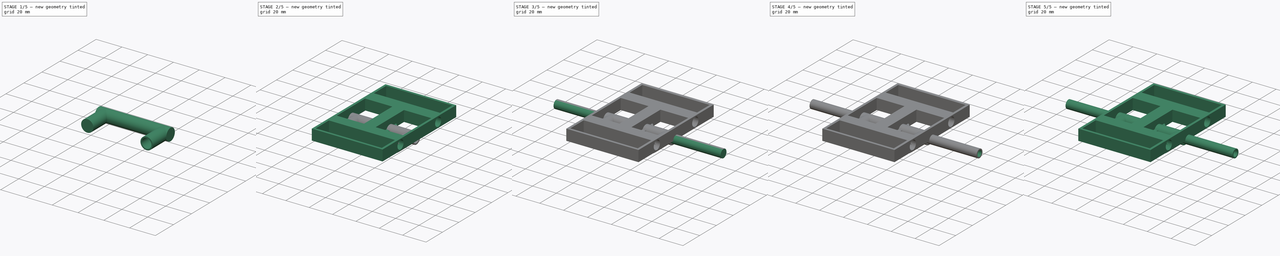
[diagram: build sequence overview — one tinted view per stage of 5, left to right]
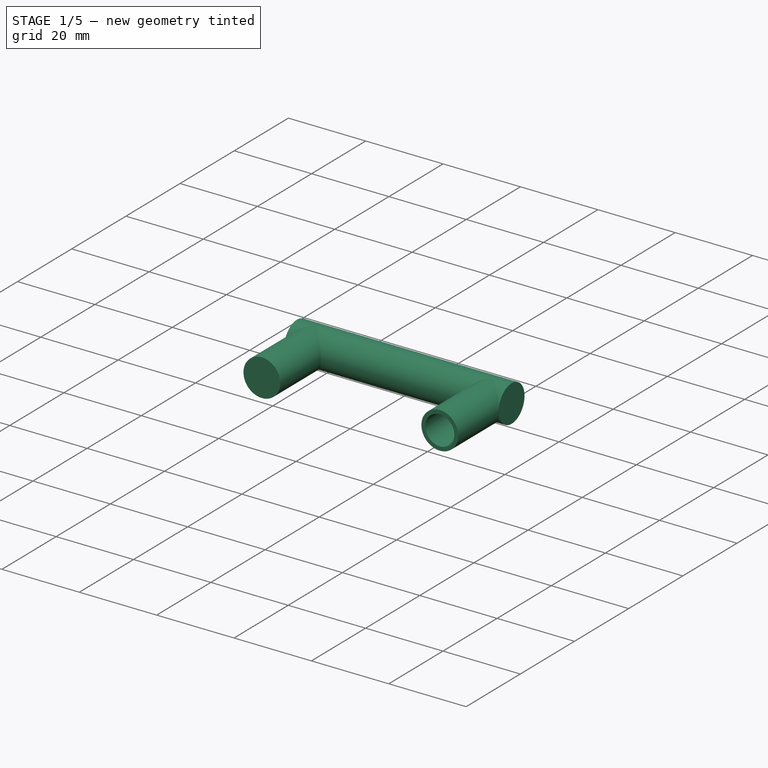
[diagram: stage 1 of 5 — iso view after this stage's code; geometry added in this stage tinted green]
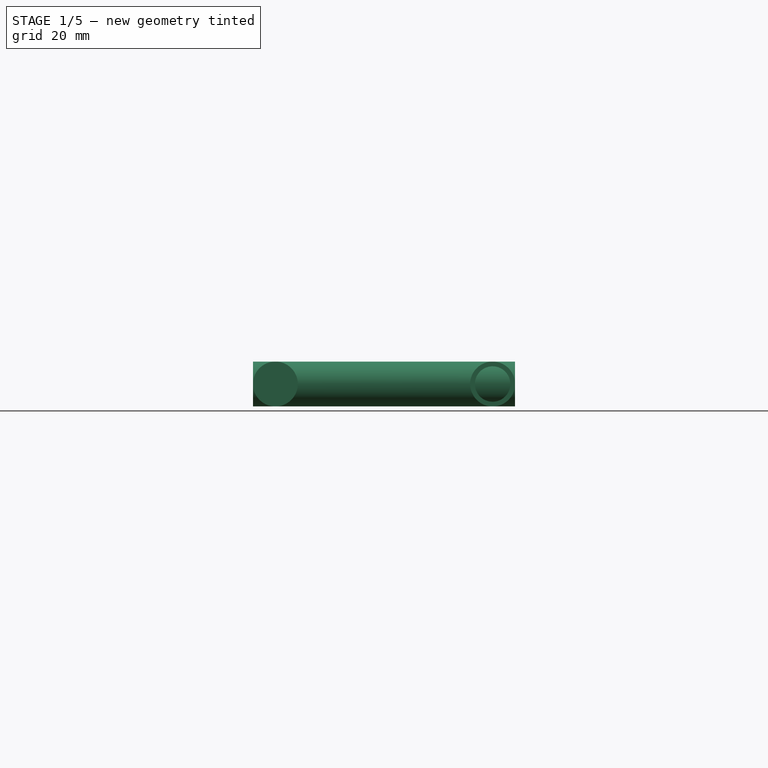
[diagram: stage 1 of 5 — front view after this stage's code; geometry added in this stage tinted green]
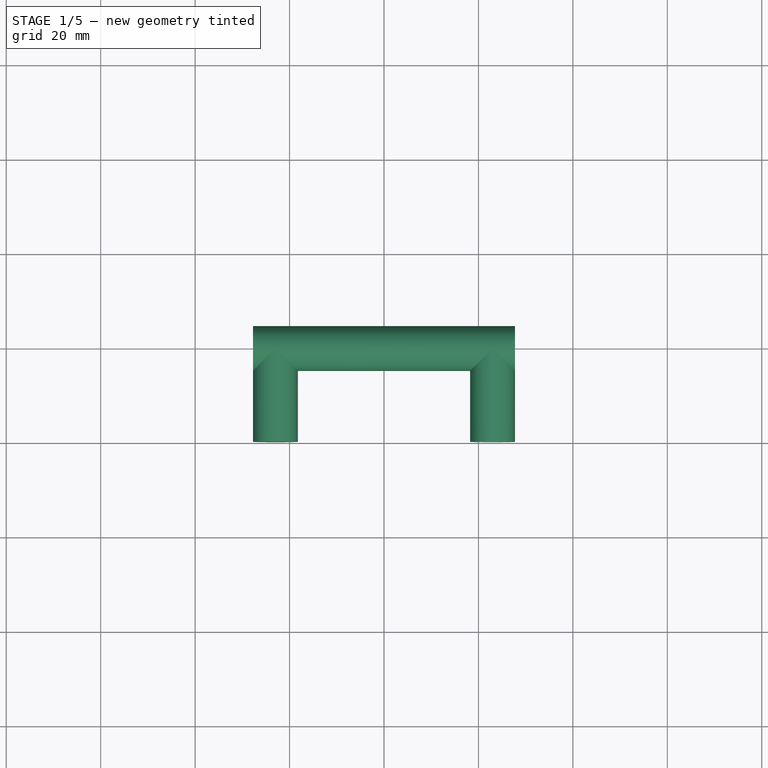
[diagram: stage 1 of 5 — top view after this stage's code; geometry added in this stage tinted green]
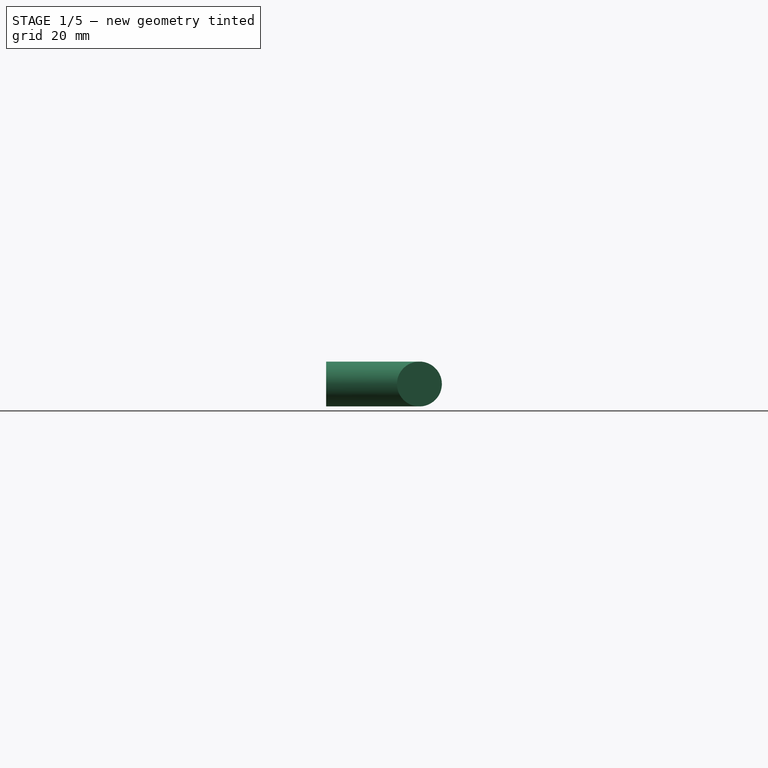
[diagram: stage 1 of 5 — right view after this stage's code; geometry added in this stage tinted green]
FCSTD DOCUMENT  (FreeCAD 1.0R39109 (Git))
Label: Frame Drone_2
License: All rights reserved
LicenseURL: http://en.wikipedia.org/wiki/All_rights_reserved
objects: Sketcher::SketchObject×45, PartDesign::Pocket×26, PartDesign::Pad×19, PartDesign::Body×15, PartDesign::Boolean×2, App::LinkGroup×2
note: 244 computed .brp shape members not serialized (recipe doc carries the construction recipe); baked Part::Feature solids carry a one-line shape summary decoded from their .brp

FEATURE [PartDesign::Body] Body  label="Le Platform"
  AllowCompound = false
  Group = -> [Sketch,Pad,Sketch002,Pocket,Sketch050,Pocket029]
  Origin = -> Origin
  Placement = pos=(0,0,1) rot=(0,0,1;0rad)
  Tip = -> Pocket029
FEATURE [Sketcher::SketchObject] Sketch051
  ArcFitTolerance = 0
  AttachmentSupport = -> [YZ_Plane017]
  FullyConstrained = true
  MakeInternals = false
  MapMode = 5
  Placement = pos=(0,0,0) rot=(0.57735,0.57735,0.57735;2.0944rad)
  sketch-geometry (1):
    g0: Circle CenterX=0 CenterY=0 CenterZ=0 NormalX=0 NormalY=0 NormalZ=1 AngleXU=0 Radius=4.75
  constraints (2):
    c: Coincident(g0,g-1)
    c: Diameter(g0) = 9.5
FEATURE [PartDesign::Pad] Pad021
  Direction = (1,0,0)
  Length = 55.5
  Length2 = 10
  Midplane = true
  Placement = pos=(0,0,0) rot=(0.57735,0.57735,0.57735;2.0944rad)
  Profile = -> Sketch051
  ReferenceAxis = -> Sketch051 [N_Axis]
  Suppressed = false
  Type = 0
FEATURE [PartDesign::Body] Body017
  AllowCompound = false
  Group = -> [Sketch051,Pad021]
  Origin = -> Origin017
  Tip = -> Pad021
FEATURE [Sketcher::SketchObject] Sketch052
  ArcFitTolerance = 0
  AttachmentSupport = -> [XZ_Plane018]
  FullyConstrained = true
  MakeInternals = false
  MapMode = 5
  Placement = pos=(0,0,0) rot=(1,0,0;1.5708rad)
  sketch-geometry (1):
    g0: Circle CenterX=-23 CenterY=0 CenterZ=0 NormalX=0 NormalY=0 NormalZ=1 AngleXU=0 Radius=4.75
  constraints (3):
    c: PointOnObject(g0,g-1)
    c: Diameter(g0) = 9.5
    c: DistanceX(g0,g-1) = 23
FEATURE [PartDesign::Pad] Pad022
  Direction = (0,-1,2e-16)
  Length = 19.75
  Length2 = 10
  Placement = pos=(0,0,0) rot=(1,0,0;1.5708rad)
  Profile = -> Sketch052
  ReferenceAxis = -> Sketch052 [N_Axis]
  Suppressed = false
  Type = 0
FEATURE [Sketcher::SketchObject] Sketch053
  ArcFitTolerance = 0
  AttachmentSupport = -> [XZ_Plane019]
  FullyConstrained = true
  MakeInternals = false
  MapMode = 5
  Placement = pos=(0,0,0) rot=(1,0,0;1.5708rad)
  sketch-geometry (1):
    g0: Circle CenterX=-23 CenterY=0 CenterZ=0 NormalX=0 NormalY=0 NormalZ=1 AngleXU=0 Radius=4.75
  constraints (3):
    c: PointOnObject(g0,g-1)
    c: Diameter(g0) = 9.5
    c: DistanceX(g0,g-1) = 23
FEATURE [PartDesign::Pad] Pad023
  Direction = (0,-1,2e-16)
  Length = 19.75
  Length2 = 10
  Placement = pos=(0,0,0) rot=(1,0,0;1.5708rad)
  Profile = -> Sketch053
  ReferenceAxis = -> Sketch053 [N_Axis]
  Suppressed = false
  Type = 0
FEATURE [PartDesign::Body] Body018  label="C Joint_Left"
  AllowCompound = false
  Group = -> [Sketch052,Pad022,Boolean004,Sketch054,Pocket030,Sketch055,Pocket031]
  Origin = -> Origin018
  Placement = pos=(-81.5,1.81e-14,5.5) rot=(0,0,1;1.5708rad)
  Tip = -> Pocket031
FEATURE [App::LinkGroup] LinkGroup  label="Left_motors"
  ElementList = -> [Body011,Body014,Body016,Body018]
  LinkMode = 0
  Placement = pos=(13,0,0) rot=(0,0,1;0rad)
FEATURE [Sketcher::SketchObject] Sketch056
  ArcFitTolerance = 0
  AttachmentSupport = -> [YZ_Plane020]
  FullyConstrained = true
  MakeInternals = false
  MapMode = 5
  Placement = pos=(0,0,0) rot=(0.57735,0.57735,0.57735;2.0944rad)
  sketch-geometry (1):
    g0: Circle CenterX=0 CenterY=0 CenterZ=0 NormalX=0 NormalY=0 NormalZ=1 AngleXU=0 Radius=4.75
  constraints (2):
    c: Coincident(g0,g-1)
    c: Diameter(g0) = 9.5
FEATURE [PartDesign::Pad] Pad024
  Direction = (1,0,0)
  Length = 55.5
  Length2 = 10
  Midplane = true
  Placement = pos=(0,0,0) rot=(0.57735,0.57735,0.57735;2.0944rad)
  Profile = -> Sketch056
  ReferenceAxis = -> Sketch056 [N_Axis]
  Suppressed = false
  Type = 0
FEATURE [PartDesign::Body] Body020
  AllowCompound = false
  Group = -> [Sketch056,Pad024]
  Origin = -> Origin020
  Tip = -> Pad024
FEATURE [Sketcher::SketchObject] Sketch057
  ArcFitTolerance = 0
  AttachmentSupport = -> [XZ_Plane021]
  FullyConstrained = true
  MakeInternals = false
  MapMode = 5
  Placement = pos=(0,0,0) rot=(1,0,0;1.5708rad)
  sketch-geometry (1):
    g0: Circle CenterX=-23 CenterY=0 CenterZ=0 NormalX=0 NormalY=0 NormalZ=1 AngleXU=0 Radius=4.75
  constraints (3):
    c: PointOnObject(g0,g-1)
    c: Diameter(g0) = 9.5
    c: DistanceX(g0,g-1) = 23
FEATURE [PartDesign::Pad] Pad025
  Direction = (0,-1,2e-16)
  Length = 19.75
  Length2 = 10
  Placement = pos=(0,0,0) rot=(1,0,0;1.5708rad)
  Profile = -> Sketch057
  ReferenceAxis = -> Sketch057 [N_Axis]
  Suppressed = false
  Type = 0
FEATURE [Sketcher::SketchObject] Sketch058
  ArcFitTolerance = 0
  AttachmentSupport = -> [XZ_Plane022]
  FullyConstrained = true
  MakeInternals = false
  MapMode = 5
  Placement = pos=(0,0,0) rot=(1,0,0;1.5708rad)
  sketch-geometry (1):
    g0: Circle CenterX=-23 CenterY=0 CenterZ=0 NormalX=0 NormalY=0 NormalZ=1 AngleXU=0 Radius=4.75
  constraints (3):
    c: PointOnObject(g0,g-1)
    c: Diameter(g0) = 9.5
    c: DistanceX(g0,g-1) = 23
FEATURE [PartDesign::Pad] Pad026
  Direction = (0,-1,2e-16)
  Length = 19.75
  Length2 = 10
  Placement = pos=(0,0,0) rot=(1,0,0;1.5708rad)
  Profile = -> Sketch058
  ReferenceAxis = -> Sketch058 [N_Axis]
  Suppressed = false
  Type = 0
FEATURE [PartDesign::Body] Body022
  AllowCompound = false
  Group = -> [Sketch058,Pad026]
  Origin = -> Origin022
  Placement = pos=(46,0,0) rot=(0,0,1;0rad)
  Tip = -> Pad026
FEATURE [PartDesign::Boolean] Boolean005
  BaseFeature = -> Pad025
  Group = -> [Body020,Body022]
  Suppressed = false
  Type = 0
  UsePlacement = false
FEATURE [Sketcher::SketchObject] Sketch059
  ArcFitTolerance = 0
  AttachmentSupport = -> [Boolean005]
  FullyConstrained = true
  MakeInternals = false
  MapMode = 5
  Placement = pos=(0,-19.75,-4.3e-15) rot=(1,0,0;1.5708rad)
  sketch-geometry (2):
    g0: Circle CenterX=23 CenterY=0 CenterZ=0 NormalX=0 NormalY=0 NormalZ=1 AngleXU=0 Radius=3.75
    g1: Circle CenterX=-23 CenterY=0 CenterZ=0 NormalX=0 NormalY=0 NormalZ=1 AngleXU=0 Radius=3.75
  constraints (5):
    c: PointOnObject(g0,g-1)
    c: Diameter(g0) = 7.5
    c: Equal(g0,g1)
    c: Symmetric(g0,g1,g-2)
    c: Distance(g0,g-1) = 23
FEATURE [PartDesign::Pocket] Pocket032
  BaseFeature = -> Boolean005
  Direction = (0,1,-2e-16)
  Length = 19.75
  Length2 = 5
  Profile = -> Sketch059
  ReferenceAxis = -> Sketch059 [N_Axis]
  Suppressed = false
  Type = 0
FEATURE [Sketcher::SketchObject] Sketch060
  ArcFitTolerance = 0
  AttachmentSupport = -> [Pocket032]
  FullyConstrained = true
  MakeInternals = false
  MapMode = 5
  Placement = pos=(27.75,-6.1e-15,-3.1e-15) rot=(0.57735,0.57735,0.57735;2.0944rad)
  sketch-geometry (1):
    g0: Circle CenterX=0 CenterY=0 CenterZ=0 NormalX=0 NormalY=0 NormalZ=1 AngleXU=0 Radius=3.75
  constraints (2):
    c: Coincident(g0,g-1)
    c: Diameter(g0) = 7.5
FEATURE [PartDesign::Pocket] Pocket033
  BaseFeature = -> Pocket032
  Direction = (-1,0,0)
  Length = 55.5
  Length2 = 5
  Profile = -> Sketch060
  ReferenceAxis = -> Sketch060 [N_Axis]
  Suppressed = false
  Type = 0
FEATURE [PartDesign::Body] Body021  label="C Joint_Right"
  AllowCompound = false
  Group = -> [Sketch057,Pad025,Boolean005,Sketch059,Pocket032,Sketch060,Pocket033]
  Origin = -> Origin021
  Placement = pos=(81.5,-1.81e-14,5.5) rot=(0,0,1;4.71239rad)
  Tip = -> Pocket033
FEATURE [App::LinkGroup] LinkGroup001  label="Right_motors"
  ElementList = -> [Body012,Body013,Body015,Body021]
  LinkMode = 0
  Placement = pos=(-13,0,0) rot=(0,0,1;0rad)
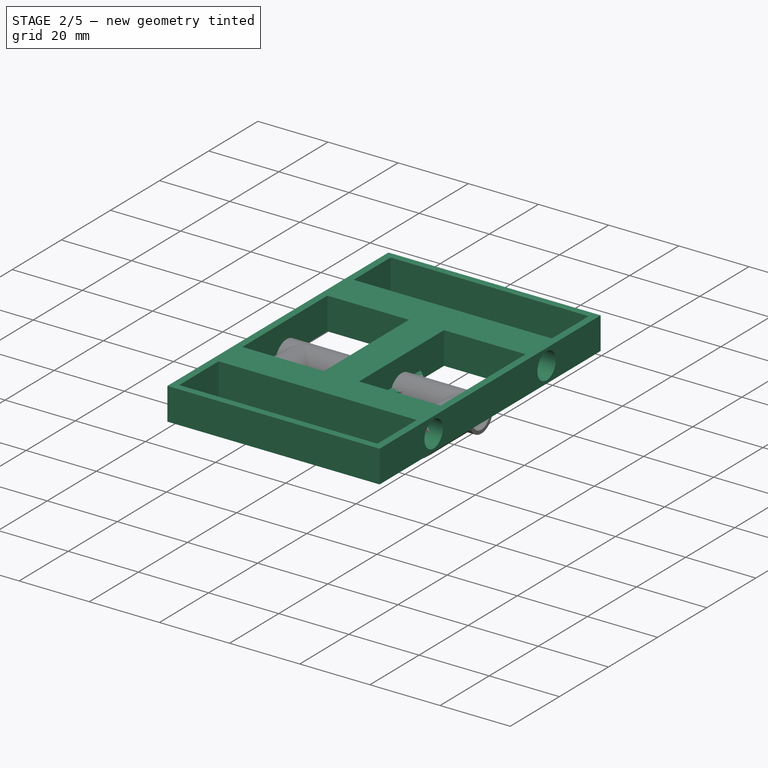
[diagram: stage 2 of 5 — iso view after this stage's code; geometry added in this stage tinted green]
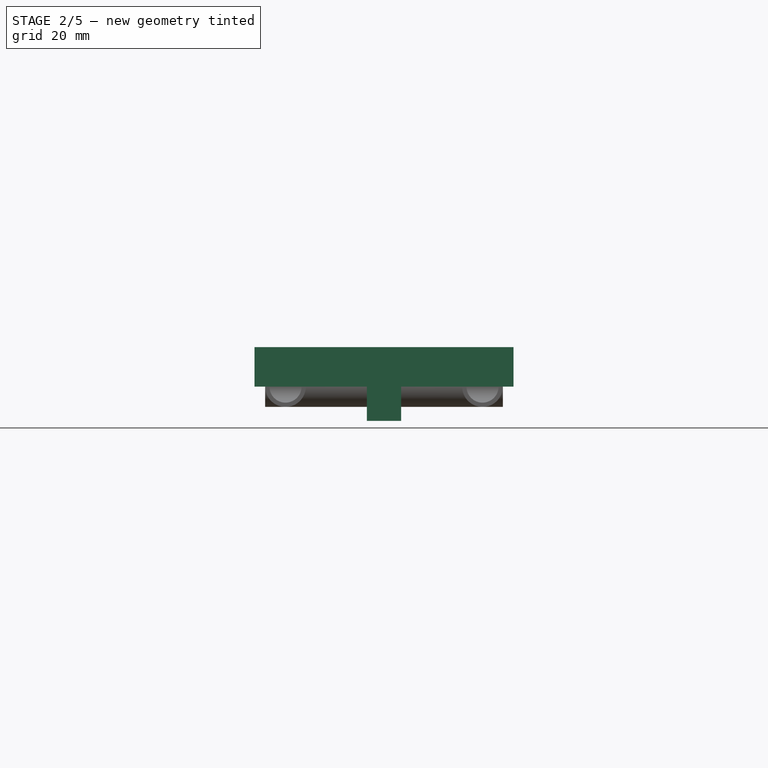
[diagram: stage 2 of 5 — front view after this stage's code; geometry added in this stage tinted green]
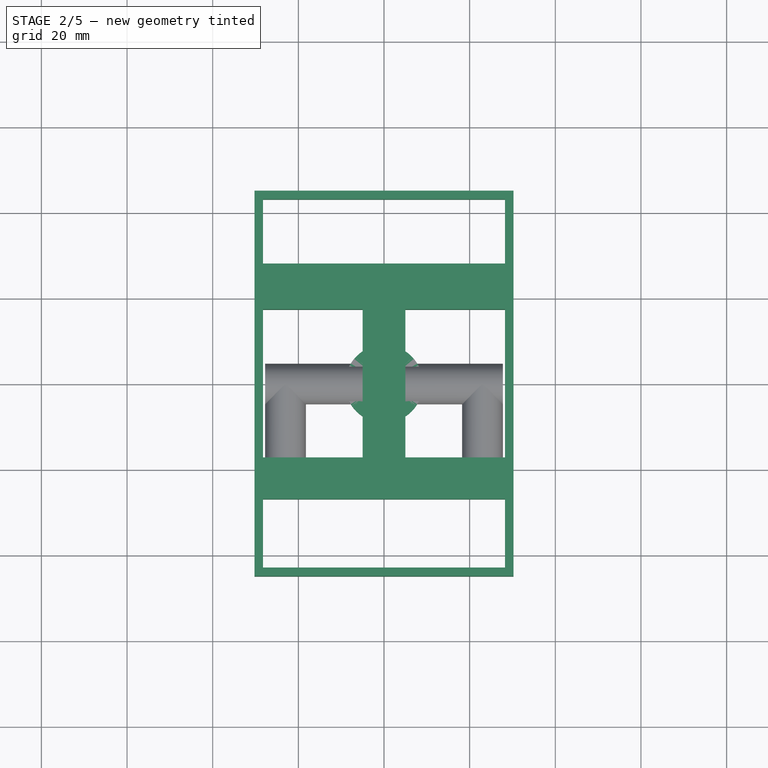
[diagram: stage 2 of 5 — top view after this stage's code; geometry added in this stage tinted green]
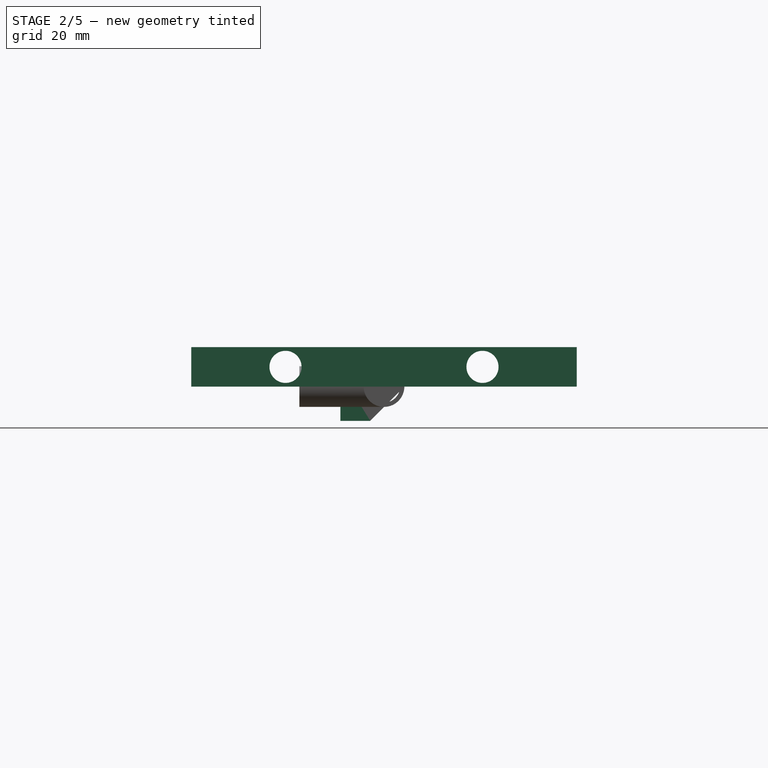
[diagram: stage 2 of 5 — right view after this stage's code; geometry added in this stage tinted green]
FEATURE [Sketcher::SketchObject] Sketch
  ArcFitTolerance = 0
  AttachmentSupport = -> [XY_Plane]
  FullyConstrained = true
  MakeInternals = false
  MapMode = 5
  sketch-geometry (4):
    g0: LineSegment StartX=-30.25 StartY=45 StartZ=0 EndX=30.25 EndY=45 EndZ=0
    g1: LineSegment StartX=30.25 StartY=45 StartZ=0 EndX=30.25 EndY=-45 EndZ=0
    g2: LineSegment StartX=30.25 StartY=-45 StartZ=0 EndX=-30.25 EndY=-45 EndZ=0
    g3: LineSegment StartX=-30.25 StartY=-45 StartZ=0 EndX=-30.25 EndY=45 EndZ=0
  constraints (12):
    c: Coincident(g0,g1)
    c: Coincident(g1,g2)
    c: Coincident(g2,g3)
    c: Coincident(g3,g0)
    c: Horizontal(g0)
    c: Horizontal(g2)
    c: Vertical(g1)
    c: Vertical(g3)
    c: Distance(g1) = 90
    c: Distance(g0) = 60.5
    c: DistanceY(g-1,g0) = 45
    c: DistanceX(g-1,g0) = 30.25
FEATURE [PartDesign::Pad] Pad
  Direction = (0,0,1)
  Length = 9.2
  Length2 = 10
  Profile = -> Sketch
  ReferenceAxis = -> Sketch [N_Axis]
  Suppressed = false
  Type = 0
FEATURE [Sketcher::SketchObject] Sketch002
  ArcFitTolerance = 0
  AttachmentSupport = -> [Pad]
  FullyConstrained = true
  MakeInternals = false
  MapMode = 5
  Placement = pos=(30.25,0,0) rot=(0.57735,0.57735,0.57735;2.0944rad)
  sketch-geometry (2):
    g0: Circle CenterX=-23 CenterY=4.6 CenterZ=0 NormalX=0 NormalY=0 NormalZ=1 AngleXU=0 Radius=3.75
    g1: Circle CenterX=23 CenterY=4.6 CenterZ=0 NormalX=0 NormalY=0 NormalZ=1 AngleXU=0 Radius=3.75
  constraints (5):
    c: Symmetric(g0,g1,g-2)
    c: Diameter(g1) = 7.5
    c: Equal(g0,g1)
    c: DistanceX(g1) = 23
    c: DistanceY(g1) = 4.6
FEATURE [PartDesign::Pocket] Pocket
  BaseFeature = -> Pad
  Direction = (-1,0,0)
  Length = 60.5
  Length2 = 5
  Profile = -> Sketch002
  ReferenceAxis = -> Sketch002 [N_Axis]
  Suppressed = false
  Type = 0
FEATURE [PartDesign::Body] Body014  label="Arm_MotorMount001"
  AllowCompound = false
  Group = -> [Sketch033,Pad015,Sketch032,Pocket017,Sketch034,Pad016,Sketch035,Pocket018,Sketch036,Pocket019,Sketch037,Pocket020]
  Origin = -> Origin014
  Placement = pos=(-81.5,70,9.25) rot=(0,0,1;0rad)
  Tip = -> Pocket020
FEATURE [Sketcher::SketchObject] Sketch039
  ArcFitTolerance = 0
  AttachmentSupport = -> [XY_Plane015]
  FullyConstrained = true
  MakeInternals = false
  MapMode = 5
  sketch-geometry (1):
    g0: Circle CenterX=0 CenterY=0 CenterZ=0 NormalX=0 NormalY=0 NormalZ=1 AngleXU=0 Radius=9.1
  constraints (2):
    c: Coincident(g0,g-1)
    c: Diameter(g0) = 18.2
FEATURE [PartDesign::Pad] Pad017
  Direction = (0,0,1)
  Length = 2.5
  Length2 = 10
  Profile = -> Sketch039
  ReferenceAxis = -> Sketch039 [N_Axis]
  Suppressed = false
  Type = 0
FEATURE [Sketcher::SketchObject] Sketch038
  ArcFitTolerance = 0
  AttachmentSupport = -> [Pad017]
  FullyConstrained = true
  MakeInternals = false
  MapMode = 5
  Placement = pos=(0,0,2.5) rot=(0,0,1;0rad)
  sketch-geometry (4):
    g0: Circle CenterX=0 CenterY=6 CenterZ=0 NormalX=0 NormalY=0 NormalZ=1 AngleXU=0 Radius=1.1
    g1: Circle CenterX=5.195 CenterY=-3.002 CenterZ=0 NormalX=0 NormalY=0 NormalZ=1 AngleXU=0 Radius=1.1
    g2: Circle CenterX=-5.195 CenterY=-3.002 CenterZ=0 NormalX=0 NormalY=0 NormalZ=1 AngleXU=0 Radius=1.1
    g3: Circle CenterX=0 CenterY=0 CenterZ=0 NormalX=0 NormalY=0 NormalZ=1 AngleXU=0 Radius=2.4
  constraints (10):
    c: PointOnObject(g0,g-2)
    c: Symmetric(g2,g1,g-2)
    c: Diameter(g0) = 2.2
    c: Equal(g0,g1)
    c: Equal(g2,g0)
    c: Distance(g0,g-1) = 6
    c: Distance(g-1,g2) = 6
    c: Distance(g1,g2) = 10.39
    c: Coincident(g3,g-1)
    c: Diameter(g3) = 4.8
FEATURE [PartDesign::Pocket] Pocket021
  BaseFeature = -> Pad017
  Direction = (0,0,-1)
  Length = 2.5
  Length2 = 5
  Profile = -> Sketch038
  ReferenceAxis = -> Sketch038 [N_Axis]
  Suppressed = false
  Type = 0
FEATURE [Sketcher::SketchObject] Sketch040
  ArcFitTolerance = 0
  AttachmentSupport = -> [Pocket021]
  FullyConstrained = true
  MakeInternals = false
  MapMode = 5
  Placement = pos=(0,0,0) rot=(1,0,0;3.14159rad)
  sketch-geometry (4):
    g0: LineSegment StartX=-4 StartY=10.2 StartZ=0 EndX=4 EndY=10.2 EndZ=0
    g1: LineSegment StartX=4 StartY=10.2 StartZ=0 EndX=4 EndY=-4.8 EndZ=0
    g2: LineSegment StartX=4 StartY=-4.8 StartZ=0 EndX=-4 EndY=-4.8 EndZ=0
    g3: LineSegment StartX=-4 StartY=-4.8 StartZ=0 EndX=-4 EndY=10.2 EndZ=0
  constraints (12):
    c: Coincident(g0,g1)
    c: Coincident(g1,g2)
    c: Coincident(g2,g3)
    c: Coincident(g3,g0)
    c: Horizontal(g0)
    c: Horizontal(g2)
    c: Vertical(g1)
    c: Vertical(g3)
    c: Distance(g0) = 8
    c: DistanceX(g-1,g1) = 4
    c: DistanceY(g2,g-1) = 4.8
    c: Distance(g1) = 15
FEATURE [PartDesign::Pad] Pad018
  BaseFeature = -> Pocket021
  Direction = (0,0,-1)
  Length = 8
  Length2 = 10
  Profile = -> Sketch040
  ReferenceAxis = -> Sketch040 [N_Axis]
  Suppressed = false
  Type = 0
FEATURE [Sketcher::SketchObject] Sketch041
  ArcFitTolerance = 0
  AttachmentSupport = -> [Pad018]
  FullyConstrained = true
  MakeInternals = false
  MapMode = 5
  Placement = pos=(-4,0,0) rot=(0.57735,-0.57735,-0.57735;2.0944rad)
  sketch-geometry (3):
    g0: LineSegment StartX=-4.8 StartY=0 StartZ=0 EndX=3.2 EndY=-8 EndZ=0
    g1: LineSegment StartX=3.2 StartY=-8 StartZ=0 EndX=-4.8 EndY=-8 EndZ=0
    g2: LineSegment StartX=-4.8 StartY=-8 StartZ=0 EndX=-4.8 EndY=0 EndZ=0
  constraints (9):
    c: PointOnObject(g0,g-1)
    c: Coincident(g1,g0)
    c: Horizontal(g1)
    c: Coincident(g2,g1)
    c: Coincident(g2,g0)
    c: Vertical(g2)
    c: Angle(g0,g1) = 0.785398
    c: Distance(g2) = 8
    c: Distance(g-1,g0) = 4.8
FEATURE [PartDesign::Pocket] Pocket022
  BaseFeature = -> Pad018
  Direction = (1,0,0)
  Length = 8
  Length2 = 5
  Profile = -> Sketch041
  ReferenceAxis = -> Sketch041 [N_Axis]
  Suppressed = false
  Type = 0
FEATURE [PartDesign::Body] Body016  label="Arm_MotorMount003"
  AllowCompound = false
  Group = -> [Sketch045,Pad019,Sketch044,Pocket025,Sketch046,Pad020,Sketch047,Pocket026,Sketch048,Pocket027,Sketch049,Pocket028]
  Origin = -> Origin016
  Placement = pos=(-81.5,-70,9.25) rot=(0,0,1;3.14159rad)
  Tip = -> Pocket028
FEATURE [Sketcher::SketchObject] Sketch050
  ArcFitTolerance = 0
  AttachmentSupport = -> [Pocket]
  FullyConstrained = true
  MakeInternals = false
  MapMode = 5
  Placement = pos=(0,0,9.2) rot=(0,0,1;0rad)
  sketch-geometry (16):
    g0: LineSegment StartX=-28.25 StartY=43 StartZ=0 EndX=28.25 EndY=43 EndZ=0
    g1: LineSegment StartX=28.25 StartY=43 StartZ=0 EndX=28.25 EndY=28 EndZ=0
    g2: LineSegment StartX=28.25 StartY=28 StartZ=0 EndX=-28.25 EndY=28 EndZ=0
    g3: LineSegment StartX=-28.25 StartY=28 StartZ=0 EndX=-28.25 EndY=43 EndZ=0
    g4: LineSegment StartX=28.25 StartY=17.3 StartZ=0 EndX=28.25 EndY=-17.3 EndZ=0
    g5: LineSegment StartX=-28.25 StartY=-17.3 StartZ=0 EndX=-28.25 EndY=17.3 EndZ=0
    g6: LineSegment StartX=-28.25 StartY=-27 StartZ=0 EndX=28.25 EndY=-27 EndZ=0
    g7: LineSegment StartX=28.25 StartY=-27 StartZ=0 EndX=28.25 EndY=-43 EndZ=0
    g8: LineSegment StartX=28.25 StartY=-43 StartZ=0 EndX=-28.25 EndY=-43 EndZ=0
    g9: LineSegment StartX=-28.25 StartY=-43 StartZ=0 EndX=-28.25 EndY=-27 EndZ=0
    g10: LineSegment StartX=-5 StartY=17.3 StartZ=0 EndX=-5 EndY=-17.3 EndZ=0
    g11: LineSegment StartX=5 StartY=17.3 StartZ=0 EndX=5 EndY=-17.3 EndZ=0
    g12: LineSegment StartX=-28.25 StartY=17.3 StartZ=0 EndX=-5 EndY=17.3 EndZ=0
    g13: LineSegment StartX=5 StartY=17.3 StartZ=0 EndX=28.25 EndY=17.3 EndZ=0
    g14: LineSegment StartX=5 StartY=-17.3 StartZ=0 EndX=28.25 EndY=-17.3 EndZ=0
    g15: LineSegment StartX=-28.25 StartY=-17.3 StartZ=0 EndX=-5 EndY=-17.3 EndZ=0
  constraints (48):
    c: Coincident(g0,g1)
    c: Coincident(g1,g2)
    c: Coincident(g2,g3)
    c: Coincident(g3,g0)
    c: Horizontal(g0)
    c: Horizontal(g2)
    c: Vertical(g1)
    c: Vertical(g3)
    c: Vertical(g4)
    c: Vertical(g5)
    c: Coincident(g6,g7)
    c: Coincident(g7,g8)
    c: Coincident(g8,g9)
    c: Coincident(g9,g6)
    c: Horizontal(g6)
    c: Horizontal(g8)
    c: Vertical(g7)
    c: Vertical(g9)
    c: Distance(g0) = 56.5
    c: DistanceX(g-1,g1) = 28.25
    c: Vertical(g1,g4)
    c: Vertical(g4,g6)
    c: Distance(g1) = 15
    c: DistanceY(g-1,g0) = 43
    c: Distance(g4) = 34.6
    c: DistanceY(g-1,g4) = 17.3
    c: DistanceY(g8,g-1) = 43
    c: Distance(g7) = 16
    c: Vertical(g10)
    c: Vertical(g11)
    c: DistanceX(g10,g11) = 10
    c: DistanceX(g-1,g11) = 5
    c: Coincident(g12,g5)
    c: Coincident(g12,g10)
    c: Horizontal(g12)
    c: Coincident(g13,g11)
    c: Coincident(g13,g4)
    c: Horizontal(g13)
    c: Coincident(g14,g11)
    c: Coincident(g14,g4)
    c: Horizontal(g14)
    c: Coincident(g15,g5)
    c: Coincident(g15,g10)
    c: Horizontal(g15)
    c: Horizontal(g10,g11)
    c: Horizontal(g10,g11)
    c: DistanceX(g5,g-1) = 28.25
    c: Vertical(g6,g5)
FEATURE [PartDesign::Pocket] Pocket029
  BaseFeature = -> Pocket
  Direction = (0,0,-1)
  Length = 9.5
  Length2 = 5
  Profile = -> Sketch050
  ReferenceAxis = -> Sketch050 [N_Axis]
  Suppressed = false
  Type = 0
FEATURE [PartDesign::Body] Body019
  AllowCompound = false
  Group = -> [Sketch053,Pad023]
  Origin = -> Origin019
  Placement = pos=(46,0,0) rot=(0,0,1;0rad)
  Tip = -> Pad023
FEATURE [PartDesign::Boolean] Boolean004
  BaseFeature = -> Pad022
  Group = -> [Body017,Body019]
  Suppressed = false
  Type = 0
  UsePlacement = false
FEATURE [Sketcher::SketchObject] Sketch054
  ArcFitTolerance = 0
  AttachmentSupport = -> [Boolean004]
  FullyConstrained = true
  MakeInternals = false
  MapMode = 5
  Placement = pos=(0,-19.75,-4.3e-15) rot=(1,0,0;1.5708rad)
  sketch-geometry (2):
    g0: Circle CenterX=23 CenterY=0 CenterZ=0 NormalX=0 NormalY=0 NormalZ=1 AngleXU=0 Radius=3.75
    g1: Circle CenterX=-23 CenterY=0 CenterZ=0 NormalX=0 NormalY=0 NormalZ=1 AngleXU=0 Radius=3.75
  constraints (5):
    c: PointOnObject(g0,g-1)
    c: Diameter(g0) = 7.5
    c: Equal(g0,g1)
    c: Symmetric(g0,g1,g-2)
    c: Distance(g0,g-1) = 23
FEATURE [PartDesign::Pocket] Pocket030
  BaseFeature = -> Boolean004
  Direction = (0,1,-2e-16)
  Length = 19.75
  Length2 = 5
  Profile = -> Sketch054
  ReferenceAxis = -> Sketch054 [N_Axis]
  Suppressed = false
  Type = 0
FEATURE [Sketcher::SketchObject] Sketch055
  ArcFitTolerance = 0
  AttachmentSupport = -> [Pocket030]
  FullyConstrained = true
  MakeInternals = false
  MapMode = 5
  Placement = pos=(27.75,-6.1e-15,-3.1e-15) rot=(0.57735,0.57735,0.57735;2.0944rad)
  sketch-geometry (1):
    g0: Circle CenterX=0 CenterY=0 CenterZ=0 NormalX=0 NormalY=0 NormalZ=1 AngleXU=0 Radius=3.75
  constraints (2):
    c: Coincident(g0,g-1)
    c: Diameter(g0) = 7.5
FEATURE [PartDesign::Pocket] Pocket031
  BaseFeature = -> Pocket030
  Direction = (-1,0,0)
  Length = 55.5
  Length2 = 5
  Profile = -> Sketch055
  ReferenceAxis = -> Sketch055 [N_Axis]
  Suppressed = false
  Type = 0
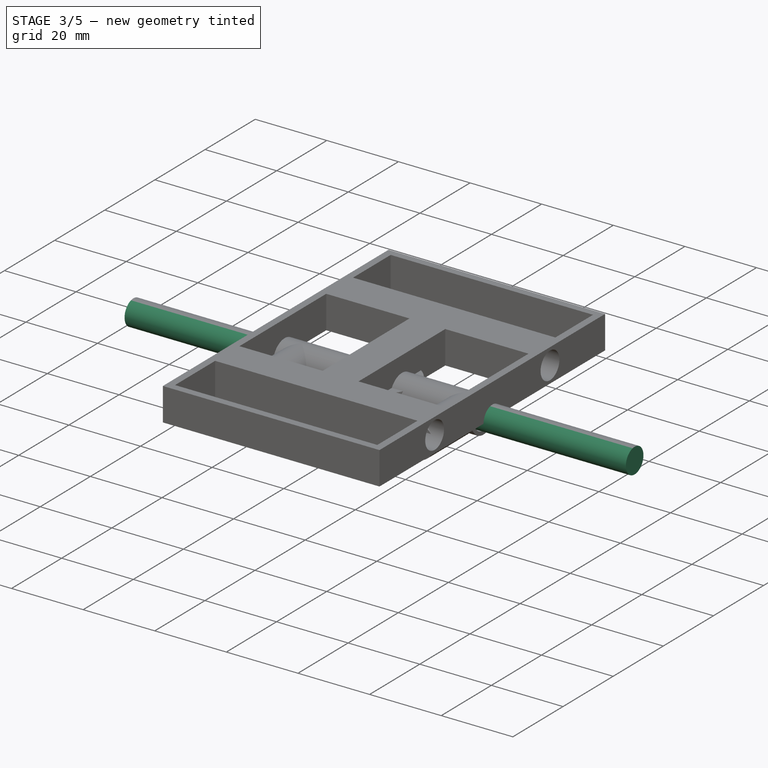
[diagram: stage 3 of 5 — iso view after this stage's code; geometry added in this stage tinted green]
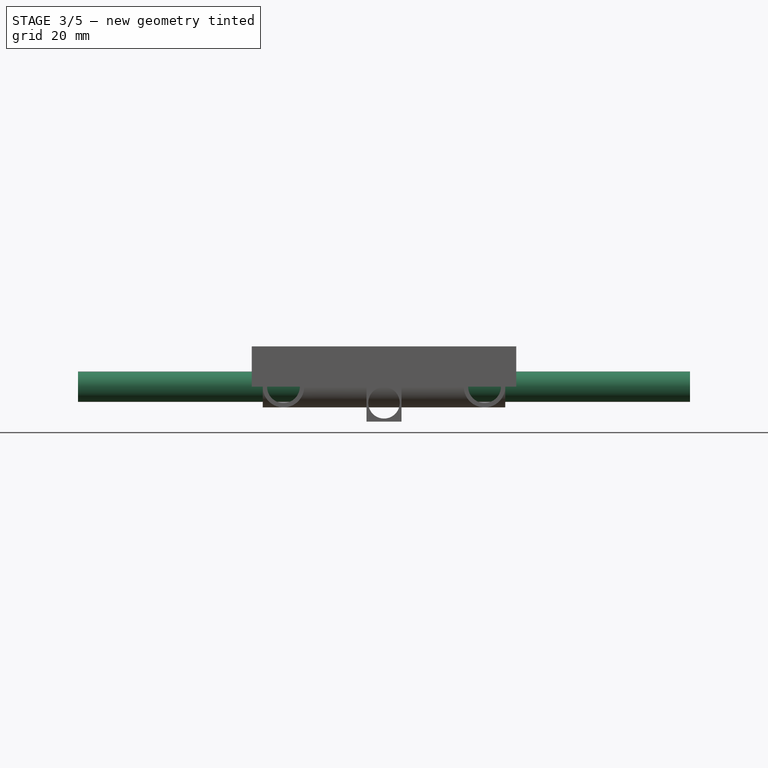
[diagram: stage 3 of 5 — front view after this stage's code; geometry added in this stage tinted green]
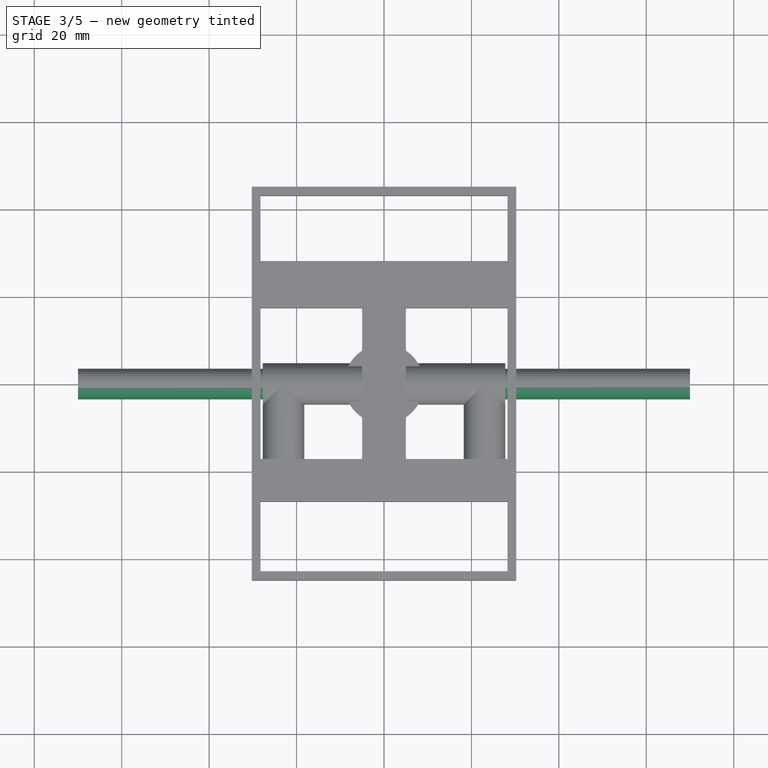
[diagram: stage 3 of 5 — top view after this stage's code; geometry added in this stage tinted green]
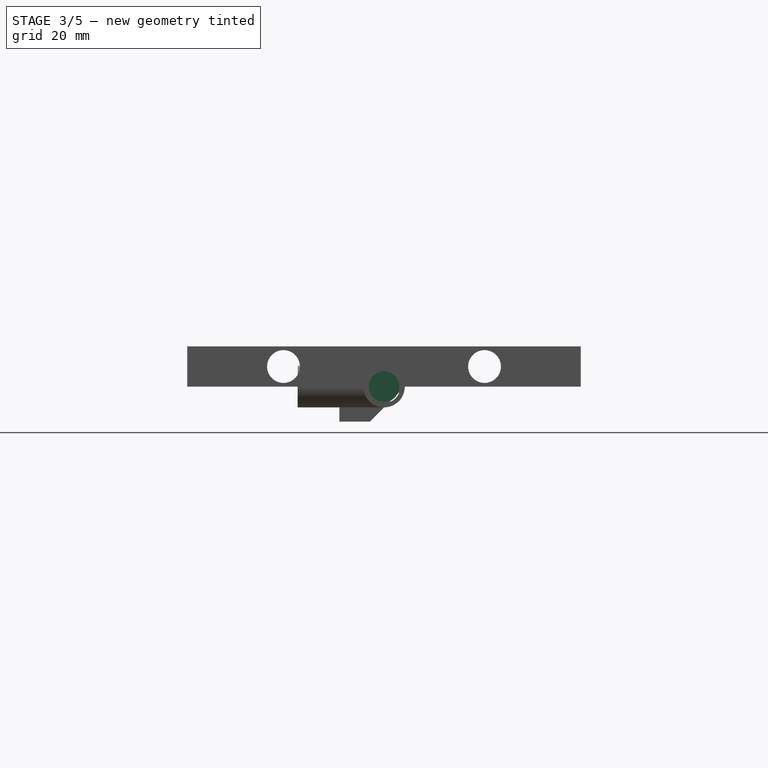
[diagram: stage 3 of 5 — right view after this stage's code; geometry added in this stage tinted green]
FEATURE [PartDesign::Body] Body011  label="Arm_left"
  AllowCompound = false
  Group = -> [Sketch023,Pad011,Sketch024,Pocket011]
  Origin = -> Origin011
  Placement = pos=(-81.5,1.78e-14,5.5) rot=(0,0,1;1.5708rad)
  Tip = -> Pocket011
FEATURE [Sketcher::SketchObject] Sketch025
  ArcFitTolerance = 0
  AttachmentSupport = -> [YZ_Plane012]
  FullyConstrained = true
  MakeInternals = false
  MapMode = 5
  Placement = pos=(0,0,0) rot=(0.57735,0.57735,0.57735;2.0944rad)
  sketch-geometry (1):
    g0: Circle CenterX=0 CenterY=0 CenterZ=0 NormalX=0 NormalY=0 NormalZ=1 AngleXU=0 Radius=3.5
  constraints (2):
    c: Coincident(g0,g-1)
    c: Diameter(g0) = 7
FEATURE [PartDesign::Pad] Pad012
  Direction = (1,0,0)
  Length = 140
  Length2 = 10
  Midplane = true
  Placement = pos=(0,0,0) rot=(0.57735,0.57735,0.57735;2.0944rad)
  Profile = -> Sketch025
  ReferenceAxis = -> Sketch025 [N_Axis]
  Suppressed = false
  Type = 0
FEATURE [PartDesign::Body] Body012  label="Arm_right"
  AllowCompound = false
  Group = -> [Sketch025,Pad012,Sketch026,Pocket012]
  Origin = -> Origin012
  Placement = pos=(81.5,-1.8e-14,5.5) rot=(0,0,-1;1.5708rad)
  Tip = -> Pocket012
FEATURE [Sketcher::SketchObject] Sketch027
  ArcFitTolerance = 0
  AttachmentSupport = -> [XY_Plane013]
  FullyConstrained = true
  MakeInternals = false
  MapMode = 5
  sketch-geometry (1):
    g0: Circle CenterX=0 CenterY=0 CenterZ=0 NormalX=0 NormalY=0 NormalZ=1 AngleXU=0 Radius=9.1
  constraints (2):
    c: Coincident(g0,g-1)
    c: Diameter(g0) = 18.2
FEATURE [PartDesign::Pad] Pad013
  Direction = (0,0,1)
  Length = 2.5
  Length2 = 10
  Profile = -> Sketch027
  ReferenceAxis = -> Sketch027 [N_Axis]
  Suppressed = false
  Type = 0
FEATURE [Sketcher::SketchObject] Sketch001
  ArcFitTolerance = 0
  AttachmentSupport = -> [Pad013]
  FullyConstrained = true
  MakeInternals = false
  MapMode = 5
  Placement = pos=(0,0,2.5) rot=(0,0,1;0rad)
  sketch-geometry (4):
    g0: Circle CenterX=0 CenterY=6 CenterZ=0 NormalX=0 NormalY=0 NormalZ=1 AngleXU=0 Radius=1.1
    g1: Circle CenterX=5.195 CenterY=-3.002 CenterZ=0 NormalX=0 NormalY=0 NormalZ=1 AngleXU=0 Radius=1.1
    g2: Circle CenterX=-5.195 CenterY=-3.002 CenterZ=0 NormalX=0 NormalY=0 NormalZ=1 AngleXU=0 Radius=1.1
    g3: Circle CenterX=0 CenterY=0 CenterZ=0 NormalX=0 NormalY=0 NormalZ=1 AngleXU=0 Radius=2.4
  constraints (10):
    c: PointOnObject(g0,g-2)
    c: Symmetric(g2,g1,g-2)
    c: Diameter(g0) = 2.2
    c: Equal(g0,g1)
    c: Equal(g2,g0)
    c: Distance(g0,g-1) = 6
    c: Distance(g-1,g2) = 6
    c: Distance(g1,g2) = 10.39
    c: Coincident(g3,g-1)
    c: Diameter(g3) = 4.8
FEATURE [PartDesign::Pocket] Pocket013
  BaseFeature = -> Pad013
  Direction = (0,0,-1)
  Length = 2.5
  Length2 = 5
  Profile = -> Sketch001
  ReferenceAxis = -> Sketch001 [N_Axis]
  Suppressed = false
  Type = 0
FEATURE [Sketcher::SketchObject] Sketch028
  ArcFitTolerance = 0
  AttachmentSupport = -> [Pocket013]
  FullyConstrained = true
  MakeInternals = false
  MapMode = 5
  Placement = pos=(0,0,0) rot=(1,0,0;3.14159rad)
  sketch-geometry (4):
    g0: LineSegment StartX=-4 StartY=10.2 StartZ=0 EndX=4 EndY=10.2 EndZ=0
    g1: LineSegment StartX=4 StartY=10.2 StartZ=0 EndX=4 EndY=-4.8 EndZ=0
    g2: LineSegment StartX=4 StartY=-4.8 StartZ=0 EndX=-4 EndY=-4.8 EndZ=0
    g3: LineSegment StartX=-4 StartY=-4.8 StartZ=0 EndX=-4 EndY=10.2 EndZ=0
  constraints (12):
    c: Coincident(g0,g1)
    c: Coincident(g1,g2)
    c: Coincident(g2,g3)
    c: Coincident(g3,g0)
    c: Horizontal(g0)
    c: Horizontal(g2)
    c: Vertical(g1)
    c: Vertical(g3)
    c: Distance(g0) = 8
    c: DistanceX(g-1,g1) = 4
    c: DistanceY(g2,g-1) = 4.8
    c: Distance(g1) = 15
FEATURE [PartDesign::Pad] Pad014
  BaseFeature = -> Pocket013
  Direction = (0,0,-1)
  Length = 8
  Length2 = 10
  Profile = -> Sketch028
  ReferenceAxis = -> Sketch028 [N_Axis]
  Suppressed = false
  Type = 0
FEATURE [Sketcher::SketchObject] Sketch029
  ArcFitTolerance = 0
  AttachmentSupport = -> [Pad014]
  FullyConstrained = true
  MakeInternals = false
  MapMode = 5
  Placement = pos=(-4,0,0) rot=(0.57735,-0.57735,-0.57735;2.0944rad)
  sketch-geometry (3):
    g0: LineSegment StartX=-4.8 StartY=0 StartZ=0 EndX=3.2 EndY=-8 EndZ=0
    g1: LineSegment StartX=3.2 StartY=-8 StartZ=0 EndX=-4.8 EndY=-8 EndZ=0
    g2: LineSegment StartX=-4.8 StartY=-8 StartZ=0 EndX=-4.8 EndY=0 EndZ=0
  constraints (9):
    c: PointOnObject(g0,g-1)
    c: Coincident(g1,g0)
    c: Horizontal(g1)
    c: Coincident(g2,g1)
    c: Coincident(g2,g0)
    c: Vertical(g2)
    c: Angle(g0,g1) = 0.785398
    c: Distance(g2) = 8
    c: Distance(g-1,g0) = 4.8
FEATURE [PartDesign::Pocket] Pocket014
  BaseFeature = -> Pad014
  Direction = (1,0,0)
  Length = 8
  Length2 = 5
  Profile = -> Sketch029
  ReferenceAxis = -> Sketch029 [N_Axis]
  Suppressed = false
  Type = 0
FEATURE [Sketcher::SketchObject] Sketch030
  ArcFitTolerance = 0
  AttachmentSupport = -> [Pocket014]
  FullyConstrained = true
  MakeInternals = false
  MapMode = 5
  sketch-geometry (1):
    g0: Circle CenterX=0 CenterY=0 CenterZ=0 NormalX=0 NormalY=0 NormalZ=1 AngleXU=0 Radius=2.4
  constraints (2):
    c: Coincident(g0,g-1)
    c: Diameter(g0) = 4.8
FEATURE [PartDesign::Pocket] Pocket015
  BaseFeature = -> Pocket014
  Direction = (0,0,-1)
  Length = 8
  Length2 = 5
  Profile = -> Sketch030
  ReferenceAxis = -> Sketch030 [N_Axis]
  Suppressed = false
  Type = 0
FEATURE [Sketcher::SketchObject] Sketch031
  ArcFitTolerance = 0
  AttachmentSupport = -> [Pocket015]
  FullyConstrained = true
  MakeInternals = false
  MapMode = 5
  Placement = pos=(0,-10.2,0) rot=(1,0,0;1.5708rad)
  sketch-geometry (1):
    g0: Circle CenterX=0 CenterY=-3.7 CenterZ=0 NormalX=0 NormalY=0 NormalZ=1 AngleXU=0 Radius=3.6
  constraints (3):
    c: PointOnObject(g0,g-2)
    c: Diameter(g0) = 7.2
    c: Distance(g-1,g0) = 3.7
FEATURE [PartDesign::Pocket] Pocket016
  BaseFeature = -> Pocket015
  Direction = (0,1,-2e-16)
  Length = 20
  Length2 = 5
  Profile = -> Sketch031
  ReferenceAxis = -> Sketch031 [N_Axis]
  Suppressed = false
  Type = 0
FEATURE [Sketcher::SketchObject] Sketch042
  ArcFitTolerance = 0
  AttachmentSupport = -> [Pocket022]
  FullyConstrained = true
  MakeInternals = false
  MapMode = 5
  sketch-geometry (1):
    g0: Circle CenterX=0 CenterY=0 CenterZ=0 NormalX=0 NormalY=0 NormalZ=1 AngleXU=0 Radius=2.4
  constraints (2):
    c: Coincident(g0,g-1)
    c: Diameter(g0) = 4.8
FEATURE [PartDesign::Pocket] Pocket023
  BaseFeature = -> Pocket022
  Direction = (0,0,-1)
  Length = 8
  Length2 = 5
  Profile = -> Sketch042
  ReferenceAxis = -> Sketch042 [N_Axis]
  Suppressed = false
  Type = 0
FEATURE [Sketcher::SketchObject] Sketch043
  ArcFitTolerance = 0
  AttachmentSupport = -> [Pocket023]
  FullyConstrained = true
  MakeInternals = false
  MapMode = 5
  Placement = pos=(0,-10.2,0) rot=(1,0,0;1.5708rad)
  sketch-geometry (1):
    g0: Circle CenterX=0 CenterY=-3.7 CenterZ=0 NormalX=0 NormalY=0 NormalZ=1 AngleXU=0 Radius=3.6
  constraints (3):
    c: PointOnObject(g0,g-2)
    c: Diameter(g0) = 7.2
    c: Distance(g-1,g0) = 3.7
FEATURE [PartDesign::Pocket] Pocket024
  BaseFeature = -> Pocket023
  Direction = (0,1,-2e-16)
  Length = 20
  Length2 = 5
  Profile = -> Sketch043
  ReferenceAxis = -> Sketch043 [N_Axis]
  Suppressed = false
  Type = 0
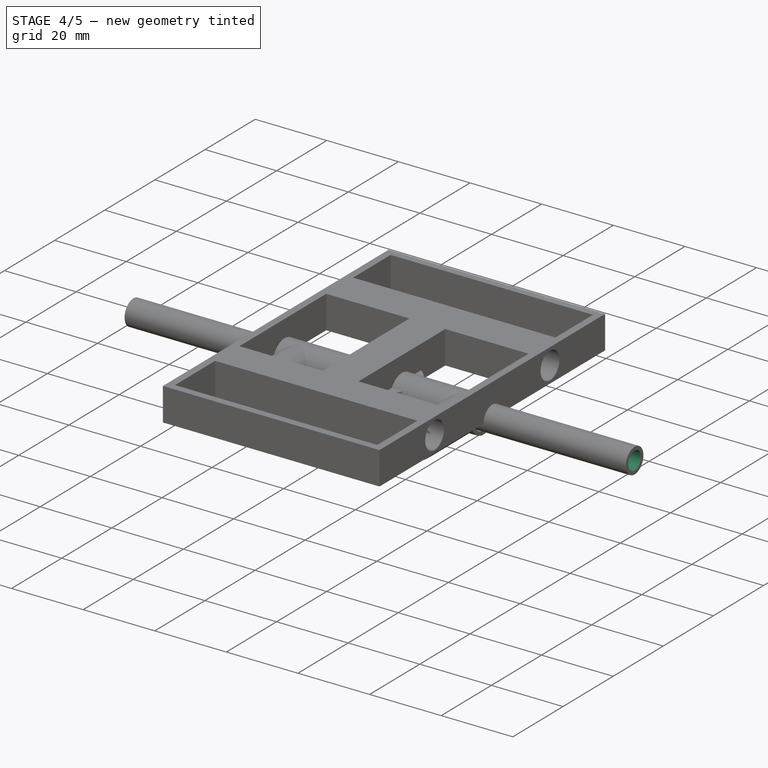
[diagram: stage 4 of 5 — iso view after this stage's code; geometry added in this stage tinted green]
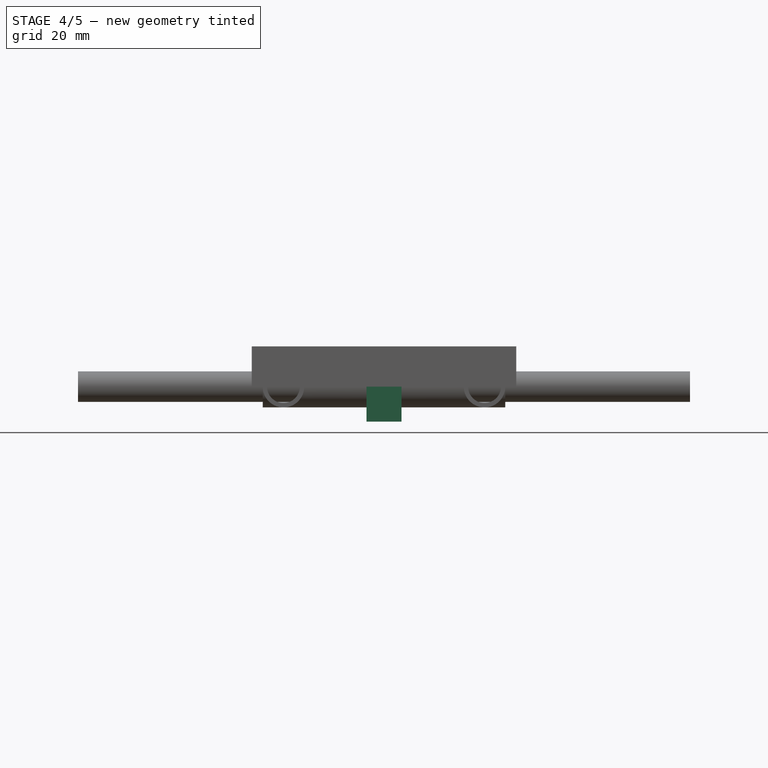
[diagram: stage 4 of 5 — front view after this stage's code; geometry added in this stage tinted green]
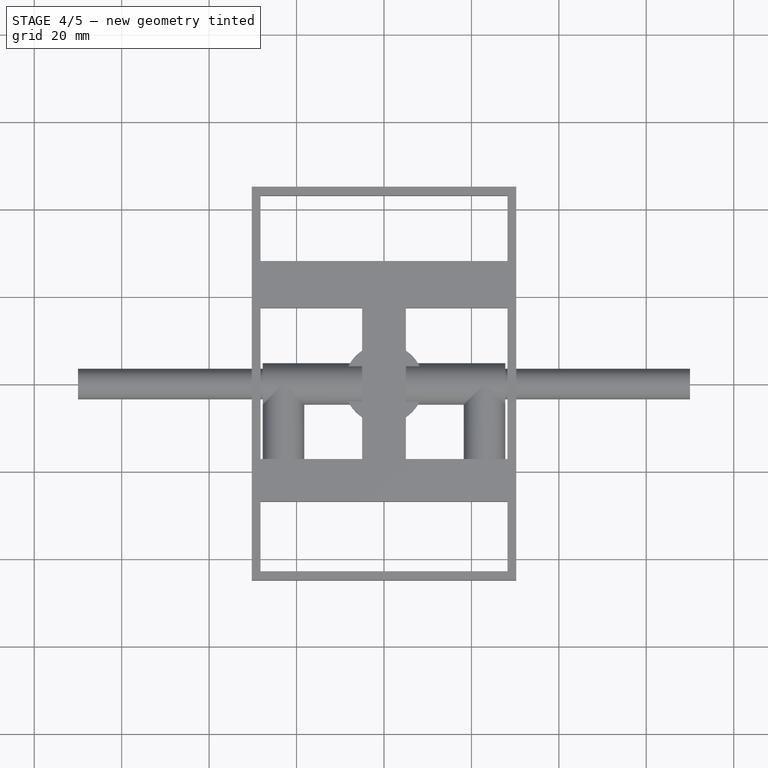
[diagram: stage 4 of 5 — top view after this stage's code; geometry added in this stage tinted green]
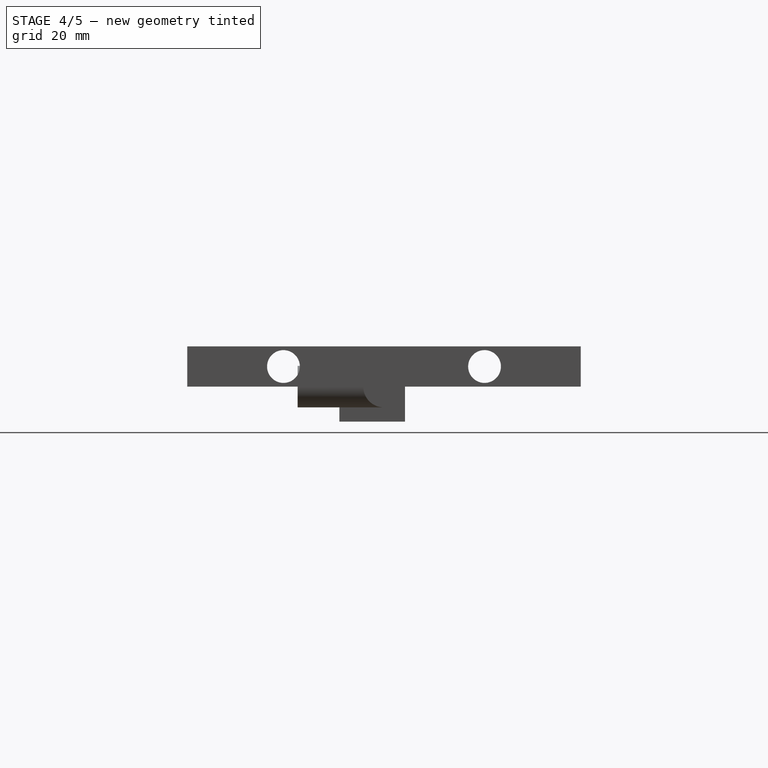
[diagram: stage 4 of 5 — right view after this stage's code; geometry added in this stage tinted green]
FEATURE [Sketcher::SketchObject] Sketch026
  ArcFitTolerance = 0
  AttachmentSupport = -> [Pad012]
  FullyConstrained = true
  MakeInternals = false
  MapMode = 5
  Placement = pos=(-70,0,0) rot=(0.57735,0.57735,-0.57735;4.18879rad)
  sketch-geometry (1):
    g0: Circle CenterX=0 CenterY=0 CenterZ=0 NormalX=0 NormalY=0 NormalZ=1 AngleXU=0 Radius=2.5
  constraints (2):
    c: Coincident(g0,g-1)
    c: Diameter(g0) = 5
FEATURE [PartDesign::Pocket] Pocket012
  BaseFeature = -> Pad012
  Direction = (1,0,0)
  Length = 140
  Length2 = 5
  Placement = pos=(0,0,0) rot=(0.57735,0.57735,0.57735;2.0944rad)
  Profile = -> Sketch026
  ReferenceAxis = -> Sketch026 [N_Axis]
  Suppressed = false
  Type = 0
FEATURE [PartDesign::Body] Body013  label="Arm_MotorMount"
  AllowCompound = false
  Group = -> [Sketch027,Pad013,Sketch001,Pocket013,Sketch028,Pad014,Sketch029,Pocket014,Sketch030,Pocket015,Sketch031,Pocket016]
  Origin = -> Origin013
  Placement = pos=(81.5,70,9.25) rot=(0,0,1;0rad)
  Tip = -> Pocket016
FEATURE [Sketcher::SketchObject] Sketch033
  ArcFitTolerance = 0
  AttachmentSupport = -> [XY_Plane014]
  FullyConstrained = true
  MakeInternals = false
  MapMode = 5
  sketch-geometry (1):
    g0: Circle CenterX=0 CenterY=0 CenterZ=0 NormalX=0 NormalY=0 NormalZ=1 AngleXU=0 Radius=9.1
  constraints (2):
    c: Coincident(g0,g-1)
    c: Diameter(g0) = 18.2
FEATURE [PartDesign::Pad] Pad015
  Direction = (0,0,1)
  Length = 2.5
  Length2 = 10
  Profile = -> Sketch033
  ReferenceAxis = -> Sketch033 [N_Axis]
  Suppressed = false
  Type = 0
FEATURE [Sketcher::SketchObject] Sketch032
  ArcFitTolerance = 0
  AttachmentSupport = -> [Pad015]
  FullyConstrained = true
  MakeInternals = false
  MapMode = 5
  Placement = pos=(0,0,2.5) rot=(0,0,1;0rad)
  sketch-geometry (4):
    g0: Circle CenterX=0 CenterY=6 CenterZ=0 NormalX=0 NormalY=0 NormalZ=1 AngleXU=0 Radius=1.1
    g1: Circle CenterX=5.195 CenterY=-3.002 CenterZ=0 NormalX=0 NormalY=0 NormalZ=1 AngleXU=0 Radius=1.1
    g2: Circle CenterX=-5.195 CenterY=-3.002 CenterZ=0 NormalX=0 NormalY=0 NormalZ=1 AngleXU=0 Radius=1.1
    g3: Circle CenterX=0 CenterY=0 CenterZ=0 NormalX=0 NormalY=0 NormalZ=1 AngleXU=0 Radius=2.4
  constraints (10):
    c: PointOnObject(g0,g-2)
    c: Symmetric(g2,g1,g-2)
    c: Diameter(g0) = 2.2
    c: Equal(g0,g1)
    c: Equal(g2,g0)
    c: Distance(g0,g-1) = 6
    c: Distance(g-1,g2) = 6
    c: Distance(g1,g2) = 10.39
    c: Coincident(g3,g-1)
    c: Diameter(g3) = 4.8
FEATURE [PartDesign::Pocket] Pocket017
  BaseFeature = -> Pad015
  Direction = (0,0,-1)
  Length = 2.5
  Length2 = 5
  Profile = -> Sketch032
  ReferenceAxis = -> Sketch032 [N_Axis]
  Suppressed = false
  Type = 0
FEATURE [Sketcher::SketchObject] Sketch034
  ArcFitTolerance = 0
  AttachmentSupport = -> [Pocket017]
  FullyConstrained = true
  MakeInternals = false
  MapMode = 5
  Placement = pos=(0,0,0) rot=(1,0,0;3.14159rad)
  sketch-geometry (4):
    g0: LineSegment StartX=-4 StartY=10.2 StartZ=0 EndX=4 EndY=10.2 EndZ=0
    g1: LineSegment StartX=4 StartY=10.2 StartZ=0 EndX=4 EndY=-4.8 EndZ=0
    g2: LineSegment StartX=4 StartY=-4.8 StartZ=0 EndX=-4 EndY=-4.8 EndZ=0
    g3: LineSegment StartX=-4 StartY=-4.8 StartZ=0 EndX=-4 EndY=10.2 EndZ=0
  constraints (12):
    c: Coincident(g0,g1)
    c: Coincident(g1,g2)
    c: Coincident(g2,g3)
    c: Coincident(g3,g0)
    c: Horizontal(g0)
    c: Horizontal(g2)
    c: Vertical(g1)
    c: Vertical(g3)
    c: Distance(g0) = 8
    c: DistanceX(g-1,g1) = 4
    c: DistanceY(g2,g-1) = 4.8
    c: Distance(g1) = 15
FEATURE [PartDesign::Pad] Pad016
  BaseFeature = -> Pocket017
  Direction = (0,0,-1)
  Length = 8
  Length2 = 10
  Profile = -> Sketch034
  ReferenceAxis = -> Sketch034 [N_Axis]
  Suppressed = false
  Type = 0
FEATURE [PartDesign::Body] Body015  label="Arm_MotorMount002"
  AllowCompound = false
  Group = -> [Sketch039,Pad017,Sketch038,Pocket021,Sketch040,Pad018,Sketch041,Pocket022,Sketch042,Pocket023,Sketch043,Pocket024]
  Origin = -> Origin015
  Placement = pos=(81.5,-70,9.25) rot=(0,0,1;3.14159rad)
  Tip = -> Pocket024
FEATURE [Sketcher::SketchObject] Sketch045
  ArcFitTolerance = 0
  AttachmentSupport = -> [XY_Plane016]
  FullyConstrained = true
  MakeInternals = false
  MapMode = 5
  sketch-geometry (1):
    g0: Circle CenterX=0 CenterY=0 CenterZ=0 NormalX=0 NormalY=0 NormalZ=1 AngleXU=0 Radius=9.1
  constraints (2):
    c: Coincident(g0,g-1)
    c: Diameter(g0) = 18.2
FEATURE [PartDesign::Pad] Pad019
  Direction = (0,0,1)
  Length = 2.5
  Length2 = 10
  Profile = -> Sketch045
  ReferenceAxis = -> Sketch045 [N_Axis]
  Suppressed = false
  Type = 0
FEATURE [Sketcher::SketchObject] Sketch044
  ArcFitTolerance = 0
  AttachmentSupport = -> [Pad019]
  FullyConstrained = true
  MakeInternals = false
  MapMode = 5
  Placement = pos=(0,0,2.5) rot=(0,0,1;0rad)
  sketch-geometry (4):
    g0: Circle CenterX=0 CenterY=6 CenterZ=0 NormalX=0 NormalY=0 NormalZ=1 AngleXU=0 Radius=1.1
    g1: Circle CenterX=5.195 CenterY=-3.002 CenterZ=0 NormalX=0 NormalY=0 NormalZ=1 AngleXU=0 Radius=1.1
    g2: Circle CenterX=-5.195 CenterY=-3.002 CenterZ=0 NormalX=0 NormalY=0 NormalZ=1 AngleXU=0 Radius=1.1
    g3: Circle CenterX=0 CenterY=0 CenterZ=0 NormalX=0 NormalY=0 NormalZ=1 AngleXU=0 Radius=2.4
  constraints (10):
    c: PointOnObject(g0,g-2)
    c: Symmetric(g2,g1,g-2)
    c: Diameter(g0) = 2.2
    c: Equal(g0,g1)
    c: Equal(g2,g0)
    c: Distance(g0,g-1) = 6
    c: Distance(g-1,g2) = 6
    c: Distance(g1,g2) = 10.39
    c: Coincident(g3,g-1)
    c: Diameter(g3) = 4.8
FEATURE [PartDesign::Pocket] Pocket025
  BaseFeature = -> Pad019
  Direction = (0,0,-1)
  Length = 2.5
  Length2 = 5
  Profile = -> Sketch044
  ReferenceAxis = -> Sketch044 [N_Axis]
  Suppressed = false
  Type = 0
FEATURE [Sketcher::SketchObject] Sketch046
  ArcFitTolerance = 0
  AttachmentSupport = -> [Pocket025]
  FullyConstrained = true
  MakeInternals = false
  MapMode = 5
  Placement = pos=(0,0,0) rot=(1,0,0;3.14159rad)
  sketch-geometry (4):
    g0: LineSegment StartX=-4 StartY=10.2 StartZ=0 EndX=4 EndY=10.2 EndZ=0
    g1: LineSegment StartX=4 StartY=10.2 StartZ=0 EndX=4 EndY=-4.8 EndZ=0
    g2: LineSegment StartX=4 StartY=-4.8 StartZ=0 EndX=-4 EndY=-4.8 EndZ=0
    g3: LineSegment StartX=-4 StartY=-4.8 StartZ=0 EndX=-4 EndY=10.2 EndZ=0
  constraints (12):
    c: Coincident(g0,g1)
    c: Coincident(g1,g2)
    c: Coincident(g2,g3)
    c: Coincident(g3,g0)
    c: Horizontal(g0)
    c: Horizontal(g2)
    c: Vertical(g1)
    c: Vertical(g3)
    c: Distance(g0) = 8
    c: DistanceX(g-1,g1) = 4
    c: DistanceY(g2,g-1) = 4.8
    c: Distance(g1) = 15
FEATURE [PartDesign::Pad] Pad020
  BaseFeature = -> Pocket025
  Direction = (0,0,-1)
  Length = 8
  Length2 = 10
  Profile = -> Sketch046
  ReferenceAxis = -> Sketch046 [N_Axis]
  Suppressed = false
  Type = 0
FEATURE [Sketcher::SketchObject] Sketch047
  ArcFitTolerance = 0
  AttachmentSupport = -> [Pad020]
  FullyConstrained = true
  MakeInternals = false
  MapMode = 5
  Placement = pos=(-4,0,0) rot=(0.57735,-0.57735,-0.57735;2.0944rad)
  sketch-geometry (3):
    g0: LineSegment StartX=-4.8 StartY=0 StartZ=0 EndX=3.2 EndY=-8 EndZ=0
    g1: LineSegment StartX=3.2 StartY=-8 StartZ=0 EndX=-4.8 EndY=-8 EndZ=0
    g2: LineSegment StartX=-4.8 StartY=-8 StartZ=0 EndX=-4.8 EndY=0 EndZ=0
  constraints (9):
    c: PointOnObject(g0,g-1)
    c: Coincident(g1,g0)
    c: Horizontal(g1)
    c: Coincident(g2,g1)
    c: Coincident(g2,g0)
    c: Vertical(g2)
    c: Angle(g0,g1) = 0.785398
    c: Distance(g2) = 8
    c: Distance(g-1,g0) = 4.8
FEATURE [PartDesign::Pocket] Pocket026
  BaseFeature = -> Pad020
  Direction = (1,0,0)
  Length = 8
  Length2 = 5
  Profile = -> Sketch047
  ReferenceAxis = -> Sketch047 [N_Axis]
  Suppressed = false
  Type = 0
FEATURE [Sketcher::SketchObject] Sketch048
  ArcFitTolerance = 0
  AttachmentSupport = -> [Pocket026]
  FullyConstrained = true
  MakeInternals = false
  MapMode = 5
  sketch-geometry (1):
    g0: Circle CenterX=0 CenterY=0 CenterZ=0 NormalX=0 NormalY=0 NormalZ=1 AngleXU=0 Radius=2.4
  constraints (2):
    c: Coincident(g0,g-1)
    c: Diameter(g0) = 4.8
FEATURE [PartDesign::Pocket] Pocket027
  BaseFeature = -> Pocket026
  Direction = (0,0,-1)
  Length = 8
  Length2 = 5
  Profile = -> Sketch048
  ReferenceAxis = -> Sketch048 [N_Axis]
  Suppressed = false
  Type = 0
FEATURE [Sketcher::SketchObject] Sketch049
  ArcFitTolerance = 0
  AttachmentSupport = -> [Pocket027]
  FullyConstrained = true
  MakeInternals = false
  MapMode = 5
  Placement = pos=(0,-10.2,0) rot=(1,0,0;1.5708rad)
  sketch-geometry (1):
    g0: Circle CenterX=0 CenterY=-3.7 CenterZ=0 NormalX=0 NormalY=0 NormalZ=1 AngleXU=0 Radius=3.6
  constraints (3):
    c: PointOnObject(g0,g-2)
    c: Diameter(g0) = 7.2
    c: Distance(g-1,g0) = 3.7
FEATURE [PartDesign::Pocket] Pocket028
  BaseFeature = -> Pocket027
  Direction = (0,1,-2e-16)
  Length = 20
  Length2 = 5
  Profile = -> Sketch049
  ReferenceAxis = -> Sketch049 [N_Axis]
  Suppressed = false
  Type = 0
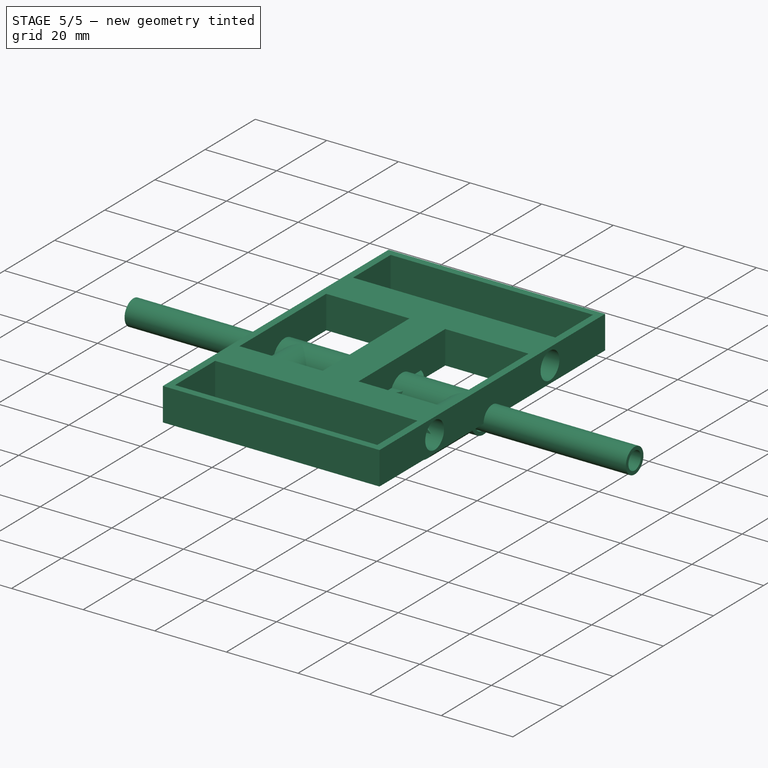
[diagram: stage 5 of 5 — iso view after this stage's code; geometry added in this stage tinted green]
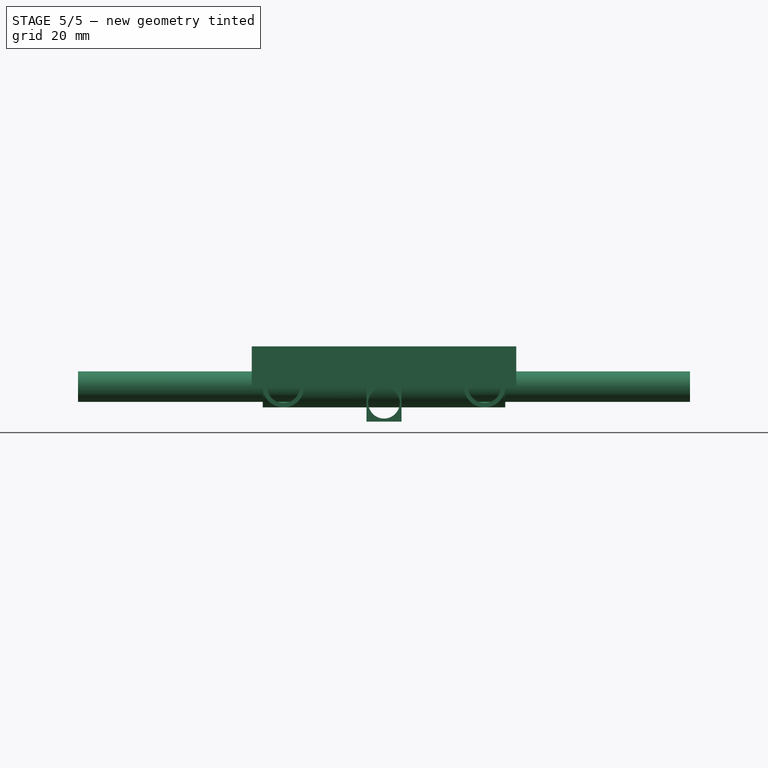
[diagram: stage 5 of 5 — front view after this stage's code; geometry added in this stage tinted green]
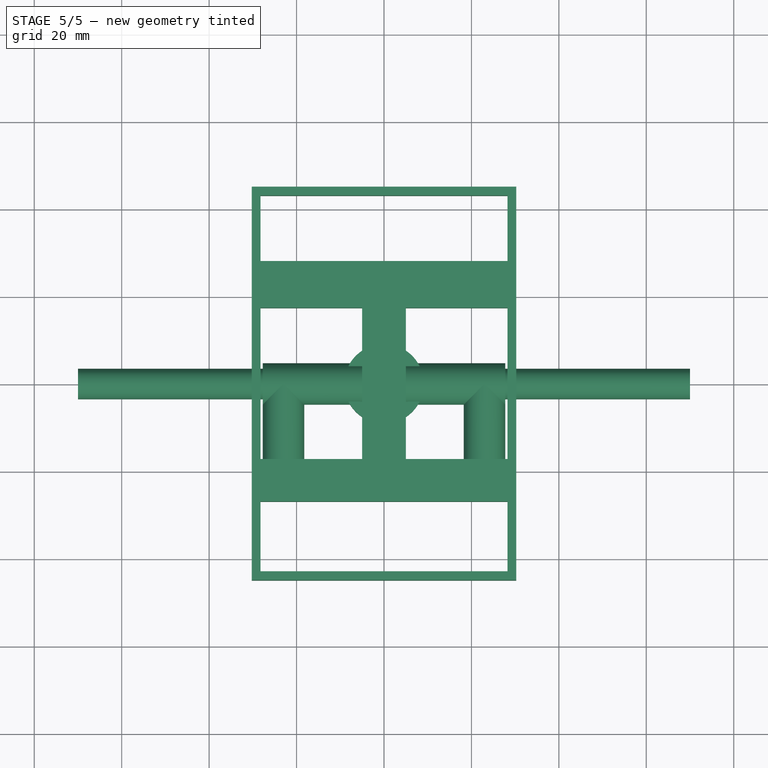
[diagram: stage 5 of 5 — top view after this stage's code; geometry added in this stage tinted green]
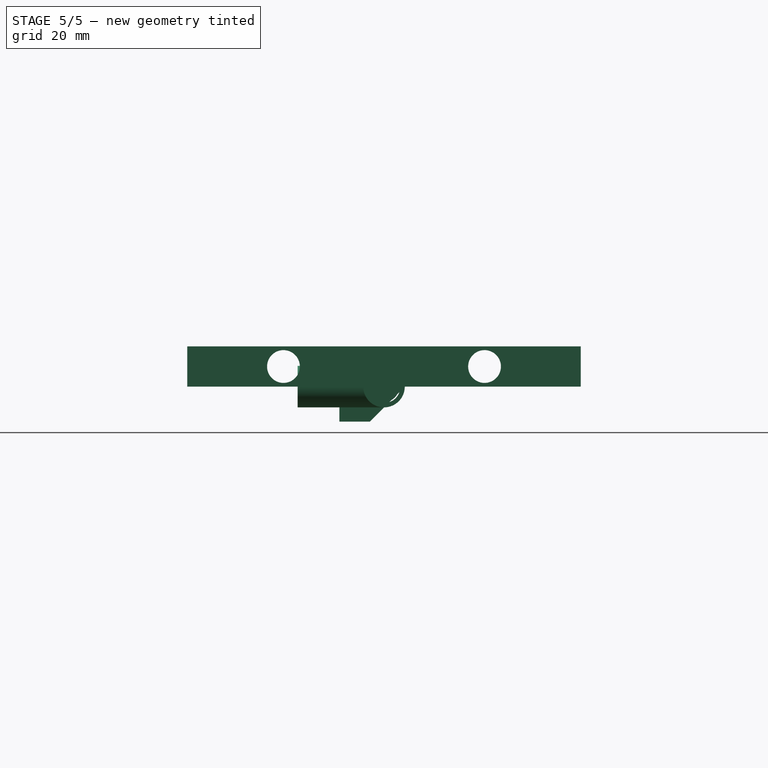
[diagram: stage 5 of 5 — right view after this stage's code; geometry added in this stage tinted green]
FEATURE [Sketcher::SketchObject] Sketch003
  ArcFitTolerance = 0
  AttachmentSupport = -> [YZ_Plane001]
  FullyConstrained = true
  MakeInternals = false
  MapMode = 5
  Placement = pos=(0,0,0) rot=(0.57735,0.57735,0.57735;2.0944rad)
  sketch-geometry (1):
    g0: Circle CenterX=0 CenterY=0 CenterZ=0 NormalX=0 NormalY=0 NormalZ=1 AngleXU=0 Radius=3.5
  constraints (2):
    c: Coincident(g0,g-1)
    c: Diameter(g0) = 7
FEATURE [PartDesign::Pad] Pad001
  Direction = (1,0,0)
  Length = 130
  Length2 = 10
  Midplane = true
  Placement = pos=(0,0,0) rot=(0.57735,0.57735,0.57735;2.0944rad)
  Profile = -> Sketch003
  ReferenceAxis = -> Sketch003 [N_Axis]
  Suppressed = false
  Type = 0
FEATURE [Sketcher::SketchObject] Sketch004
  ArcFitTolerance = 0
  AttachmentSupport = -> [Pad001]
  FullyConstrained = true
  MakeInternals = false
  MapMode = 5
  Placement = pos=(-65,0,0) rot=(0.57735,0.57735,-0.57735;4.18879rad)
  sketch-geometry (1):
    g0: Circle CenterX=0 CenterY=0 CenterZ=0 NormalX=0 NormalY=0 NormalZ=1 AngleXU=0 Radius=2.5
  constraints (2):
    c: Coincident(g0,g-1)
    c: Diameter(g0) = 5
FEATURE [PartDesign::Pocket] Pocket001
  BaseFeature = -> Pad001
  Direction = (1,0,0)
  Length = 130
  Length2 = 5
  Placement = pos=(0,0,0) rot=(0.57735,0.57735,0.57735;2.0944rad)
  Profile = -> Sketch004
  ReferenceAxis = -> Sketch004 [N_Axis]
  Suppressed = false
  Type = 0
FEATURE [PartDesign::Body] Body001  label="Arm_front"
  AllowCompound = false
  Group = -> [Sketch003,Pad001,Sketch004,Pocket001]
  Origin = -> Origin001
  Placement = pos=(0,23,5.5) rot=(0,0,1;0rad)
  Tip = -> Pocket001
FEATURE [Sketcher::SketchObject] Sketch005
  ArcFitTolerance = 0
  AttachmentSupport = -> [YZ_Plane002]
  FullyConstrained = true
  MakeInternals = false
  MapMode = 5
  Placement = pos=(0,0,0) rot=(0.57735,0.57735,0.57735;2.0944rad)
  sketch-geometry (1):
    g0: Circle CenterX=0 CenterY=0 CenterZ=0 NormalX=0 NormalY=0 NormalZ=1 AngleXU=0 Radius=3.5
  constraints (2):
    c: Coincident(g0,g-1)
    c: Diameter(g0) = 7
FEATURE [PartDesign::Pad] Pad002
  Direction = (1,0,0)
  Length = 130
  Length2 = 10
  Midplane = true
  Placement = pos=(0,0,0) rot=(0.57735,0.57735,0.57735;2.0944rad)
  Profile = -> Sketch005
  ReferenceAxis = -> Sketch005 [N_Axis]
  Suppressed = false
  Type = 0
FEATURE [Sketcher::SketchObject] Sketch006
  ArcFitTolerance = 0
  AttachmentSupport = -> [Pad002]
  FullyConstrained = true
  MakeInternals = false
  MapMode = 5
  Placement = pos=(-65,0,0) rot=(0.57735,0.57735,-0.57735;4.18879rad)
  sketch-geometry (1):
    g0: Circle CenterX=0 CenterY=0 CenterZ=0 NormalX=0 NormalY=0 NormalZ=1 AngleXU=0 Radius=2.5
  constraints (2):
    c: Coincident(g0,g-1)
    c: Diameter(g0) = 5
FEATURE [PartDesign::Pocket] Pocket002
  BaseFeature = -> Pad002
  Direction = (1,0,0)
  Length = 130
  Length2 = 5
  Placement = pos=(0,0,0) rot=(0.57735,0.57735,0.57735;2.0944rad)
  Profile = -> Sketch006
  ReferenceAxis = -> Sketch006 [N_Axis]
  Suppressed = false
  Type = 0
FEATURE [PartDesign::Body] Body002  label="Arm_back"
  AllowCompound = false
  Group = -> [Sketch005,Pad002,Sketch006,Pocket002]
  Origin = -> Origin002
  Placement = pos=(0,-23,5.5) rot=(0,0,1;0rad)
  Tip = -> Pocket002
FEATURE [Sketcher::SketchObject] Sketch023
  ArcFitTolerance = 0
  AttachmentSupport = -> [YZ_Plane011]
  FullyConstrained = true
  MakeInternals = false
  MapMode = 5
  Placement = pos=(0,0,0) rot=(0.57735,0.57735,0.57735;2.0944rad)
  sketch-geometry (1):
    g0: Circle CenterX=0 CenterY=0 CenterZ=0 NormalX=0 NormalY=0 NormalZ=1 AngleXU=0 Radius=3.5
  constraints (2):
    c: Coincident(g0,g-1)
    c: Diameter(g0) = 7
FEATURE [PartDesign::Pad] Pad011
  Direction = (1,0,0)
  Length = 140
  Length2 = 10
  Midplane = true
  Placement = pos=(0,0,0) rot=(0.57735,0.57735,0.57735;2.0944rad)
  Profile = -> Sketch023
  ReferenceAxis = -> Sketch023 [N_Axis]
  Suppressed = false
  Type = 0
FEATURE [Sketcher::SketchObject] Sketch024
  ArcFitTolerance = 0
  AttachmentSupport = -> [Pad011]
  FullyConstrained = true
  MakeInternals = false
  MapMode = 5
  Placement = pos=(-70,0,0) rot=(0.57735,0.57735,-0.57735;4.18879rad)
  sketch-geometry (1):
    g0: Circle CenterX=0 CenterY=0 CenterZ=0 NormalX=0 NormalY=0 NormalZ=1 AngleXU=0 Radius=2.5
  constraints (2):
    c: Coincident(g0,g-1)
    c: Diameter(g0) = 5
FEATURE [PartDesign::Pocket] Pocket011
  BaseFeature = -> Pad011
  Direction = (1,0,0)
  Length = 140
  Length2 = 5
  Placement = pos=(0,0,0) rot=(0.57735,0.57735,0.57735;2.0944rad)
  Profile = -> Sketch024
  ReferenceAxis = -> Sketch024 [N_Axis]
  Suppressed = false
  Type = 0
FEATURE [Sketcher::SketchObject] Sketch035
  ArcFitTolerance = 0
  AttachmentSupport = -> [Pad016]
  FullyConstrained = true
  MakeInternals = false
  MapMode = 5
  Placement = pos=(-4,0,0) rot=(0.57735,-0.57735,-0.57735;2.0944rad)
  sketch-geometry (3):
    g0: LineSegment StartX=-4.8 StartY=0 StartZ=0 EndX=3.2 EndY=-8 EndZ=0
    g1: LineSegment StartX=3.2 StartY=-8 StartZ=0 EndX=-4.8 EndY=-8 EndZ=0
    g2: LineSegment StartX=-4.8 StartY=-8 StartZ=0 EndX=-4.8 EndY=0 EndZ=0
  constraints (9):
    c: PointOnObject(g0,g-1)
    c: Coincident(g1,g0)
    c: Horizontal(g1)
    c: Coincident(g2,g1)
    c: Coincident(g2,g0)
    c: Vertical(g2)
    c: Angle(g0,g1) = 0.785398
    c: Distance(g2) = 8
    c: Distance(g-1,g0) = 4.8
FEATURE [PartDesign::Pocket] Pocket018
  BaseFeature = -> Pad016
  Direction = (1,0,0)
  Length = 8
  Length2 = 5
  Profile = -> Sketch035
  ReferenceAxis = -> Sketch035 [N_Axis]
  Suppressed = false
  Type = 0
FEATURE [Sketcher::SketchObject] Sketch036
  ArcFitTolerance = 0
  AttachmentSupport = -> [Pocket018]
  FullyConstrained = true
  MakeInternals = false
  MapMode = 5
  sketch-geometry (1):
    g0: Circle CenterX=0 CenterY=0 CenterZ=0 NormalX=0 NormalY=0 NormalZ=1 AngleXU=0 Radius=2.4
  constraints (2):
    c: Coincident(g0,g-1)
    c: Diameter(g0) = 4.8
FEATURE [PartDesign::Pocket] Pocket019
  BaseFeature = -> Pocket018
  Direction = (0,0,-1)
  Length = 8
  Length2 = 5
  Profile = -> Sketch036
  ReferenceAxis = -> Sketch036 [N_Axis]
  Suppressed = false
  Type = 0
FEATURE [Sketcher::SketchObject] Sketch037
  ArcFitTolerance = 0
  AttachmentSupport = -> [Pocket019]
  FullyConstrained = true
  MakeInternals = false
  MapMode = 5
  Placement = pos=(0,-10.2,0) rot=(1,0,0;1.5708rad)
  sketch-geometry (1):
    g0: Circle CenterX=0 CenterY=-3.7 CenterZ=0 NormalX=0 NormalY=0 NormalZ=1 AngleXU=0 Radius=3.6
  constraints (3):
    c: PointOnObject(g0,g-2)
    c: Diameter(g0) = 7.2
    c: Distance(g-1,g0) = 3.7
FEATURE [PartDesign::Pocket] Pocket020
  BaseFeature = -> Pocket019
  Direction = (0,1,-2e-16)
  Length = 20
  Length2 = 5
  Profile = -> Sketch037
  ReferenceAxis = -> Sketch037 [N_Axis]
  Suppressed = false
  Type = 0
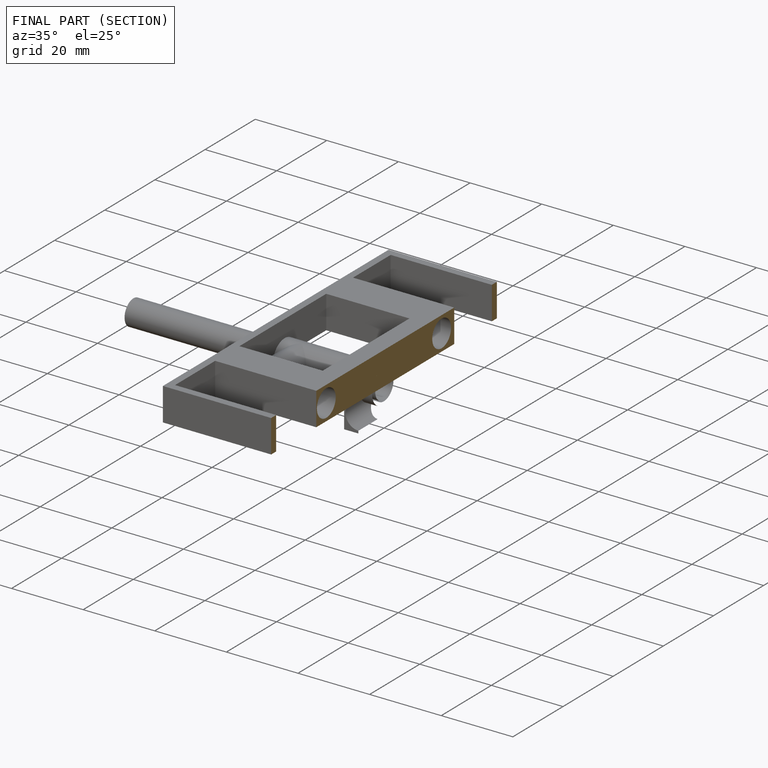
[diagram: finished part — half-section view (interior)]
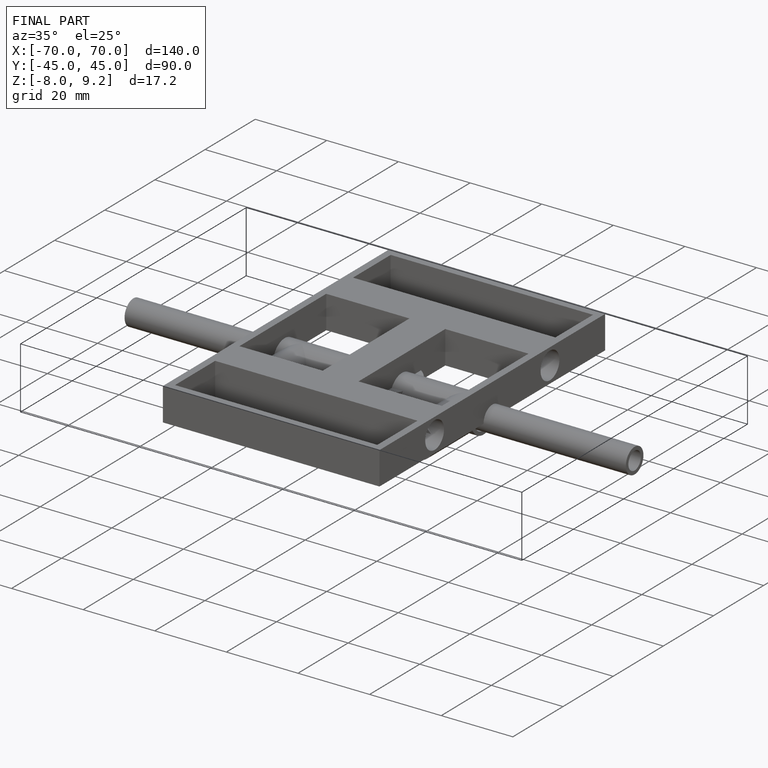
[diagram: finished part — iso view with bounding-box wireframe]
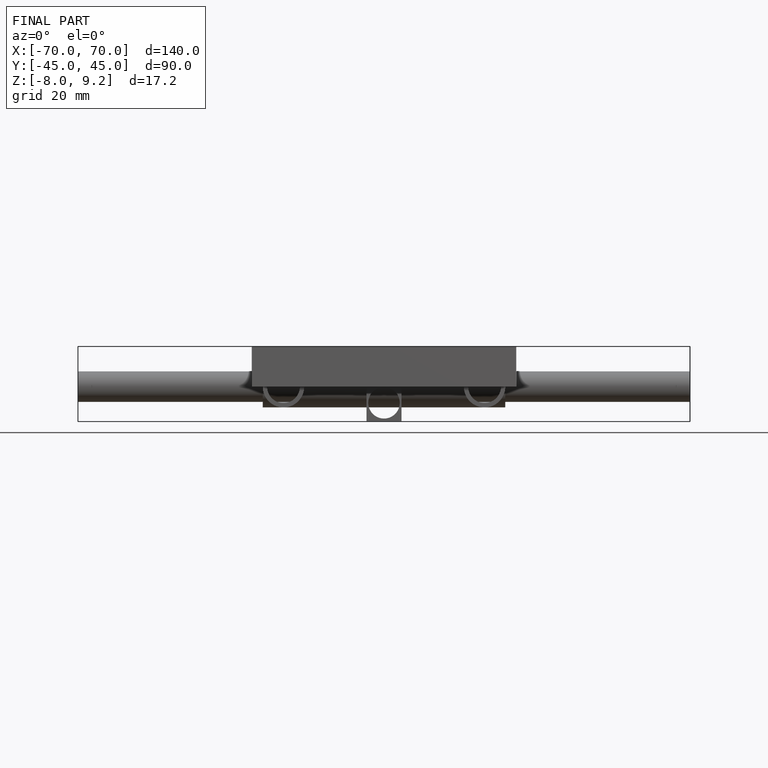
[diagram: finished part — front view with bounding-box wireframe]
